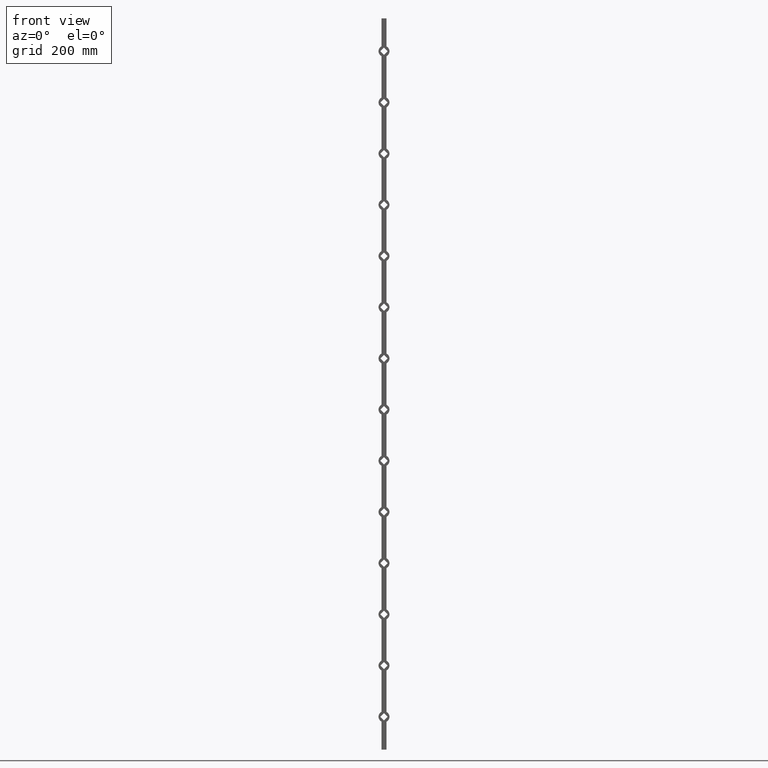
[diagram: clean part render]
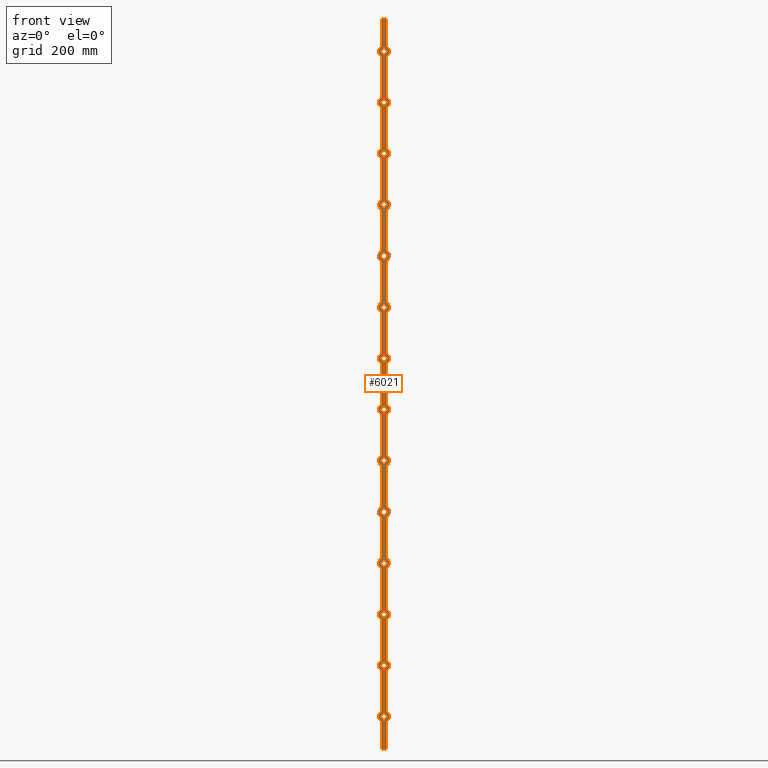
[diagram: same view with one face highlighted and labeled with its STEP entity id]
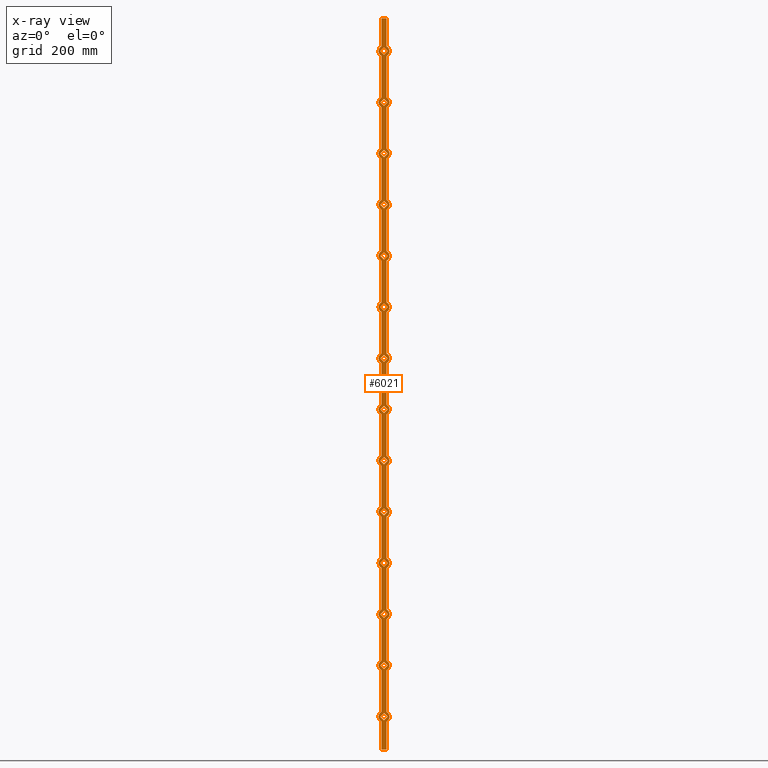
[diagram: x-ray of the same camera — body ghosted, the highlighted face saturated]
A machine part, front view. The second image highlights one B-rep face of the part: STEP entity #6021.
The next image is the same camera in x-ray: the body ghosted, the highlighted face saturated — about 0% of this face is hidden behind the body in this view.
In plain terms, the highlighted planar face has unit normal (0, 1, 0).
Its self-contained STEP definition (entity closure, byte-faithful):
#2 = VERTEX_POINT ( 'NONE', #5853 ) ;
#30 = DIRECTION ( 'NONE',  ( -0.7071067811865503483, -6.195440985631484900E-17, 0.7071067811865445751 ) ) ;
#32 = ORIENTED_EDGE ( 'NONE', *, *, #4397, .T. ) ;
#82 = VERTEX_POINT ( 'NONE', #5753 ) ;
#83 = VECTOR ( 'NONE', #3229, 1000.000000000000114 ) ;
#105 = CARTESIAN_POINT ( 'NONE',  ( 9.899494936611644036, -6.999999999999999112, 910.0000000000000000 ) ) ;
#108 = DIRECTION ( 'NONE',  ( 0.7071067811865503483, 6.195440985631484900E-17, 0.7071067811865445751 ) ) ;
#118 = DIRECTION ( 'NONE',  ( 0.000000000000000000, 0.000000000000000000, 1.000000000000000000 ) ) ;
#141 = LINE ( 'NONE', #10568, #1901 ) ;
#145 = VERTEX_POINT ( 'NONE', #12506 ) ;
#157 = CARTESIAN_POINT ( 'NONE',  ( -7.000000000000000000, -6.999999999999998224, -643.2664991614216206 ) ) ;
#165 = LINE ( 'NONE', #5179, #2810 ) ;
#170 = CARTESIAN_POINT ( 'NONE',  ( -7.000000000000015987, -7.000000000000000000, -476.7335008385784931 ) ) ;
#173 = EDGE_CURVE ( 'NONE', #5657, #12822, #8201, .T. ) ;
#200 = VERTEX_POINT ( 'NONE', #3824 ) ;
#207 = VERTEX_POINT ( 'NONE', #12878 ) ;
#218 = LINE ( 'NONE', #11062, #14425 ) ;
#223 = CARTESIAN_POINT ( 'NONE',  ( 9.899494936611676010, -7.000000000000005329, -70.00000000000005684 ) ) ;
#227 = DIRECTION ( 'NONE',  ( -0.000000000000000000, -0.000000000000000000, -1.000000000000000000 ) ) ;
#233 = FACE_BOUND ( 'NONE', #12228, .T. ) ;
#242 = CIRCLE ( 'NONE', #7488, 15.00000000000001421 ) ;
#253 = DIRECTION ( 'NONE',  ( 0.7071067811865503483, 6.195440985631484900E-17, 0.7071067811865445751 ) ) ;
#255 = CIRCLE ( 'NONE', #9427, 15.00000000000001421 ) ;
#260 = EDGE_CURVE ( 'NONE', #10491, #7687, #12720, .T. ) ;
#297 = DIRECTION ( 'NONE',  ( 0.000000000000000000, 1.000000000000000000, 0.000000000000000000 ) ) ;
#302 = VERTEX_POINT ( 'NONE', #9654 ) ;
#315 = CARTESIAN_POINT ( 'NONE',  ( 7.000000000000000000, -6.999999999999998224, 643.2664991614216206 ) ) ;
#326 = ORIENTED_EDGE ( 'NONE', *, *, #12542, .F. ) ;
#328 = CARTESIAN_POINT ( 'NONE',  ( 7.000000000000000000, -6.999999999999999112, 1000.000000000000000 ) ) ;
#337 = VERTEX_POINT ( 'NONE', #6248 ) ;
#361 = ORIENTED_EDGE ( 'NONE', *, *, #11592, .T. ) ;
#422 = VECTOR ( 'NONE', #6340, 1000.000000000000000 ) ;
#449 = VECTOR ( 'NONE', #5914, 1000.000000000000000 ) ;
#452 = EDGE_CURVE ( 'NONE', #6860, #4199, #8543, .T. ) ;
#457 = VECTOR ( 'NONE', #11904, 1000.000000000000000 ) ;
#469 = EDGE_CURVE ( 'NONE', #1159, #4199, #5909, .T. ) ;
#486 = CARTESIAN_POINT ( 'NONE',  ( -2.046678508484522304E-14, -7.000000000000006217, 499.8994949366115748 ) ) ;
#488 = VECTOR ( 'NONE', #10713, 1000.000000000000000 ) ;
#496 = DIRECTION ( 'NONE',  ( 0.000000000000000000, 1.000000000000000000, 0.000000000000000000 ) ) ;
#535 = AXIS2_PLACEMENT_3D ( 'NONE', #3112, #8903, #11126 ) ;
#564 = VERTEX_POINT ( 'NONE', #1296 ) ;
#573 = DIRECTION ( 'NONE',  ( 0.7071067811865503483, 6.195440985631484900E-17, 0.7071067811865445751 ) ) ;
#580 = EDGE_CURVE ( 'NONE', #6409, #13265, #12886, .T. ) ;
#581 = VERTEX_POINT ( 'NONE', #5867 ) ;
#584 = CARTESIAN_POINT ( 'NONE',  ( 7.000000000000000000, -6.999999999999999112, 1000.000000000000000 ) ) ;
#595 = CARTESIAN_POINT ( 'NONE',  ( 7.000000000000000000, -6.999999999999999112, 1000.000000000000000 ) ) ;
#597 = CARTESIAN_POINT ( 'NONE',  ( -9.899494936611672458, -7.000000000000007105, -910.0000000000002274 ) ) ;
#598 = LINE ( 'NONE', #7219, #14291 ) ;
#607 = VECTOR ( 'NONE', #11927, 1000.000000000000000 ) ;
#611 = VECTOR ( 'NONE', #12465, 1000.000000000000000 ) ;
#629 = DIRECTION ( 'NONE',  ( -0.000000000000000000, -0.000000000000000000, -1.000000000000000000 ) ) ;
#651 = LINE ( 'NONE', #13893, #4363 ) ;
#680 = LINE ( 'NONE', #2122, #1747 ) ;
#695 = ORIENTED_EDGE ( 'NONE', *, *, #12869, .T. ) ;
#728 = ORIENTED_EDGE ( 'NONE', *, *, #14191, .F. ) ;
#730 = DIRECTION ( 'NONE',  ( 0.000000000000000000, 1.000000000000000000, 0.000000000000000000 ) ) ;
#742 = DIRECTION ( 'NONE',  ( -0.000000000000000000, -0.000000000000000000, -1.000000000000000000 ) ) ;
#745 = CARTESIAN_POINT ( 'NONE',  ( -2.046678508484522304E-14, -7.000000000000006217, 219.8994949366115463 ) ) ;
#758 = CARTESIAN_POINT ( 'NONE',  ( 0.000000000000000000, -7.000000000000000000, -770.0000000000001137 ) ) ;
#760 = FACE_BOUND ( 'NONE', #7948, .T. ) ;
#761 = VERTEX_POINT ( 'NONE', #9620 ) ;
#780 = DIRECTION ( 'NONE',  ( 0.000000000000000000, 0.000000000000000000, 1.000000000000000000 ) ) ;
#843 = ORIENTED_EDGE ( 'NONE', *, *, #4593, .F. ) ;
#849 = DIRECTION ( 'NONE',  ( 0.000000000000000000, 1.000000000000000000, 0.000000000000000000 ) ) ;
#876 = EDGE_CURVE ( 'NONE', #9740, #8835, #12383, .T. ) ;
#940 = CARTESIAN_POINT ( 'NONE',  ( 0.000000000000000000, -7.000000000000000000, 69.99999999999995737 ) ) ;
#949 = VECTOR ( 'NONE', #14311, 1000.000000000000000 ) ;
#963 = CARTESIAN_POINT ( 'NONE',  ( -9.899494936611672458, -7.000000000000007105, 69.99999999999995737 ) ) ;
#987 = DIRECTION ( 'NONE',  ( 0.000000000000000000, 1.000000000000000000, 0.000000000000000000 ) ) ;
#992 = VERTEX_POINT ( 'NONE', #3752 ) ;
#995 = VECTOR ( 'NONE', #14071, 1000.000000000000114 ) ;
#998 = VERTEX_POINT ( 'NONE', #13937 ) ;
#1024 = ORIENTED_EDGE ( 'NONE', *, *, #5434, .F. ) ;
#1108 = VERTEX_POINT ( 'NONE', #7322 ) ;
#1119 = CARTESIAN_POINT ( 'NONE',  ( 7.000000000000000000, -6.999999999999999112, 1000.000000000000000 ) ) ;
#1127 = EDGE_CURVE ( 'NONE', #13265, #3186, #8354, .T. ) ;
#1159 = VERTEX_POINT ( 'NONE', #14333 ) ;
#1174 = EDGE_CURVE ( 'NONE', #5830, #564, #4665, .T. ) ;
#1185 = DIRECTION ( 'NONE',  ( 0.000000000000000000, 1.000000000000000000, 0.000000000000000000 ) ) ;
#1201 = EDGE_CURVE ( 'NONE', #4258, #6124, #12023, .T. ) ;
#1202 = CARTESIAN_POINT ( 'NONE',  ( 0.000000000000000000, -7.000000000000000000, -630.0000000000000000 ) ) ;
#1206 = CARTESIAN_POINT ( 'NONE',  ( -2.046678508484522304E-14, -7.000000000000006217, 779.8994949366116316 ) ) ;
#1210 = CARTESIAN_POINT ( 'NONE',  ( -9.899494936611672458, -7.000000000000003553, 910.0000000000000000 ) ) ;
#1268 = DIRECTION ( 'NONE',  ( 0.7071067811865503483, 6.195440985631484900E-17, 0.7071067811865445751 ) ) ;
#1274 = VECTOR ( 'NONE', #1623, 1000.000000000000000 ) ;
#1293 = EDGE_CURVE ( 'NONE', #8082, #3311, #10948, .T. ) ;
#1296 = CARTESIAN_POINT ( 'NONE',  ( 6.999999999999974243, -7.000000000000000000, 896.7335008385783794 ) ) ;
#1327 = CARTESIAN_POINT ( 'NONE',  ( -7.000000000000000000, -6.999999999999999112, -1000.000000000000000 ) ) ;
#1349 = AXIS2_PLACEMENT_3D ( 'NONE', #758, #13013, #5095 ) ;
#1367 = VERTEX_POINT ( 'NONE', #3728 ) ;
#1376 = CARTESIAN_POINT ( 'NONE',  ( -2.046678508484522304E-14, -7.000000000000006217, -900.1005050633887095 ) ) ;
#1394 = EDGE_CURVE ( 'NONE', #10491, #14353, #6798, .T. ) ;
#1404 = VERTEX_POINT ( 'NONE', #2426 ) ;
#1457 = VECTOR ( 'NONE', #12927, 1000.000000000000114 ) ;
#1461 = AXIS2_PLACEMENT_3D ( 'NONE', #7454, #10723, #14213 ) ;
#1480 = EDGE_CURVE ( 'NONE', #5011, #4667, #10931, .T. ) ;
#1484 = LINE ( 'NONE', #12272, #2193 ) ;
#1540 = ORIENTED_EDGE ( 'NONE', *, *, #6805, .T. ) ;
#1559 = CARTESIAN_POINT ( 'NONE',  ( 9.899494936611684892, -6.999999999999999112, -210.0000000000000853 ) ) ;
#1569 = DIRECTION ( 'NONE',  ( 0.000000000000000000, 0.000000000000000000, 1.000000000000000000 ) ) ;
#1587 = ORIENTED_EDGE ( 'NONE', *, *, #7826, .T. ) ;
#1591 = LINE ( 'NONE', #1119, #2298 ) ;
#1593 = DIRECTION ( 'NONE',  ( -0.7071067811865517916, -6.195440985631473806E-17, -0.7071067811865432429 ) ) ;
#1596 = ORIENTED_EDGE ( 'NONE', *, *, #876, .F. ) ;
#1623 = DIRECTION ( 'NONE',  ( -0.7071067811865517916, -6.195440985631473806E-17, -0.7071067811865432429 ) ) ;
#1634 = VERTEX_POINT ( 'NONE', #12253 ) ;
#1655 = VERTEX_POINT ( 'NONE', #6743 ) ;
#1664 = VECTOR ( 'NONE', #11960, 1000.000000000000000 ) ;
#1670 = CARTESIAN_POINT ( 'NONE',  ( 7.000000000000000000, -6.999999999999999112, 1000.000000000000000 ) ) ;
#1678 = CARTESIAN_POINT ( 'NONE',  ( -9.899494936611672458, -7.000000000000007105, 630.0000000000000000 ) ) ;
#1684 = EDGE_CURVE ( 'NONE', #2271, #8835, #11482, .T. ) ;
#1732 = CARTESIAN_POINT ( 'NONE',  ( 0.000000000000000000, -7.000000000000000000, -350.0000000000002274 ) ) ;
#1739 = ORIENTED_EDGE ( 'NONE', *, *, #11700, .T. ) ;
#1745 = VERTEX_POINT ( 'NONE', #14497 ) ;
#1747 = VECTOR ( 'NONE', #1983, 1000.000000000000000 ) ;
#1771 = CARTESIAN_POINT ( 'NONE',  ( 9.899494936611676010, -7.000000000000005329, 490.0000000000000000 ) ) ;
#1788 = EDGE_CURVE ( 'NONE', #9740, #1745, #8693, .T. ) ;
#1803 = CARTESIAN_POINT ( 'NONE',  ( 7.000000000000000000, -6.999999999999999112, 1000.000000000000000 ) ) ;
#1812 = EDGE_CURVE ( 'NONE', #1404, #6810, #255, .T. ) ;
#1827 = LINE ( 'NONE', #2422, #13374 ) ;
#1839 = VECTOR ( 'NONE', #12831, 1000.000000000000000 ) ;
#1848 = CARTESIAN_POINT ( 'NONE',  ( -2.046678508484522304E-14, -7.000000000000006217, -760.1005050633885958 ) ) ;
#1855 = EDGE_CURVE ( 'NONE', #1634, #11370, #7490, .T. ) ;
#1867 = ORIENTED_EDGE ( 'NONE', *, *, #1788, .T. ) ;
#1869 = VERTEX_POINT ( 'NONE', #12273 ) ;
#1895 = CARTESIAN_POINT ( 'NONE',  ( -7.000000000000000000, -6.999999999999999112, 1000.000000000000000 ) ) ;
#1901 = VECTOR ( 'NONE', #7297, 1000.000000000000114 ) ;
#1903 = ORIENTED_EDGE ( 'NONE', *, *, #10673, .T. ) ;
#1908 = DIRECTION ( 'NONE',  ( -0.000000000000000000, -0.000000000000000000, -1.000000000000000000 ) ) ;
#1910 = LINE ( 'NONE', #13085, #13826 ) ;
#1927 = DIRECTION ( 'NONE',  ( -0.000000000000000000, -0.000000000000000000, -1.000000000000000000 ) ) ;
#1983 = DIRECTION ( 'NONE',  ( -0.000000000000000000, -0.000000000000000000, -1.000000000000000000 ) ) ;
#1994 = CARTESIAN_POINT ( 'NONE',  ( 7.000000000000000000, -6.999999999999999112, 1000.000000000000000 ) ) ;
#1997 = CIRCLE ( 'NONE', #7326, 15.00000000000001421 ) ;
#1998 = CARTESIAN_POINT ( 'NONE',  ( 7.000000000000000000, -6.999999999999999112, 1000.000000000000000 ) ) ;
#2013 = CARTESIAN_POINT ( 'NONE',  ( -7.000000000000000000, -6.999999999999998224, -923.2664991614218479 ) ) ;
#2070 = CARTESIAN_POINT ( 'NONE',  ( 9.899494936611676010, -7.000000000000005329, 630.0000000000000000 ) ) ;
#2108 = EDGE_CURVE ( 'NONE', #5662, #11074, #3737, .T. ) ;
#2110 = VERTEX_POINT ( 'NONE', #11151 ) ;
#2122 = CARTESIAN_POINT ( 'NONE',  ( 7.000000000000000000, -6.999999999999999112, 1000.000000000000000 ) ) ;
#2124 = DIRECTION ( 'NONE',  ( -0.7071067811865517916, -6.195440985631473806E-17, -0.7071067811865432429 ) ) ;
#2132 = VERTEX_POINT ( 'NONE', #2486 ) ;
#2160 = VECTOR ( 'NONE', #8357, 1000.000000000000114 ) ;
#2163 = VECTOR ( 'NONE', #3964, 1000.000000000000000 ) ;
#2170 = EDGE_CURVE ( 'NONE', #14050, #9272, #5866, .T. ) ;
#2177 = CARTESIAN_POINT ( 'NONE',  ( -2.046678508484522304E-14, -7.000000000000006217, -620.1005050633884821 ) ) ;
#2182 = ORIENTED_EDGE ( 'NONE', *, *, #12578, .T. ) ;
#2193 = VECTOR ( 'NONE', #5167, 1000.000000000000000 ) ;
#2227 = DIRECTION ( 'NONE',  ( 1.000000000000000000, 0.000000000000000000, 0.000000000000000000 ) ) ;
#2250 = CARTESIAN_POINT ( 'NONE',  ( 7.000000000000000000, -6.999999999999998224, -476.7335008385784931 ) ) ;
#2254 = ORIENTED_EDGE ( 'NONE', *, *, #6785, .T. ) ;
#2270 = VERTEX_POINT ( 'NONE', #7508 ) ;
#2271 = VERTEX_POINT ( 'NONE', #6317 ) ;
#2272 = DIRECTION ( 'NONE',  ( -0.000000000000000000, -0.000000000000000000, -1.000000000000000000 ) ) ;
#2276 = CARTESIAN_POINT ( 'NONE',  ( -7.000000000000000000, -6.999999999999999112, 1000.000000000000000 ) ) ;
#2298 = VECTOR ( 'NONE', #13465, 1000.000000000000000 ) ;
#2301 = DIRECTION ( 'NONE',  ( -0.000000000000000000, -0.000000000000000000, -1.000000000000000000 ) ) ;
#2321 = DIRECTION ( 'NONE',  ( -0.000000000000000000, -0.000000000000000000, -1.000000000000000000 ) ) ;
#2329 = ORIENTED_EDGE ( 'NONE', *, *, #6115, .T. ) ;
#2338 = DIRECTION ( 'NONE',  ( 0.7071067811865517916, 6.195440985631473806E-17, -0.7071067811865432429 ) ) ;
#2348 = ORIENTED_EDGE ( 'NONE', *, *, #11530, .F. ) ;
#2373 = EDGE_CURVE ( 'NONE', #5654, #13651, #3048, .T. ) ;
#2413 = CARTESIAN_POINT ( 'NONE',  ( -6.999999999999974243, -7.000000000000000000, 503.2664991614216206 ) ) ;
#2421 = EDGE_CURVE ( 'NONE', #3071, #13651, #2526, .T. ) ;
#2422 = CARTESIAN_POINT ( 'NONE',  ( -7.000000000000000000, -6.999999999999999112, 1000.000000000000000 ) ) ;
#2424 = VERTEX_POINT ( 'NONE', #13294 ) ;
#2426 = CARTESIAN_POINT ( 'NONE',  ( 7.000000000000000000, -6.999999999999998224, -616.7335008385783794 ) ) ;
#2427 = VERTEX_POINT ( 'NONE', #6530 ) ;
#2456 = CARTESIAN_POINT ( 'NONE',  ( -2.046678508484522304E-14, -7.000000000000006217, 760.1005050633884821 ) ) ;
#2458 = CIRCLE ( 'NONE', #10877, 15.00000000000000711 ) ;
#2470 = LINE ( 'NONE', #5032, #14030 ) ;
#2474 = ORIENTED_EDGE ( 'NONE', *, *, #6758, .F. ) ;
#2486 = CARTESIAN_POINT ( 'NONE',  ( -2.046678508484522304E-14, -7.000000000000006217, -359.8994949366118021 ) ) ;
#2495 = LINE ( 'NONE', #745, #10198 ) ;
#2522 = CIRCLE ( 'NONE', #8091, 15.00000000000001421 ) ;
#2526 = LINE ( 'NONE', #2939, #2163 ) ;
#2560 = DIRECTION ( 'NONE',  ( 0.7071067811865517916, 6.195440985631473806E-17, -0.7071067811865432429 ) ) ;
#2585 = DIRECTION ( 'NONE',  ( -0.7071067811865503483, -6.195440985631484900E-17, 0.7071067811865445751 ) ) ;
#2633 = AXIS2_PLACEMENT_3D ( 'NONE', #8466, #7358, #2867 ) ;
#2639 = CARTESIAN_POINT ( 'NONE',  ( 9.899494936611796803, -6.999999999999999112, -70.00000000000005684 ) ) ;
#2688 = DIRECTION ( 'NONE',  ( 0.7071067811865503483, 6.195440985631484900E-17, 0.7071067811865445751 ) ) ;
#2695 = CARTESIAN_POINT ( 'NONE',  ( -2.046678508484522304E-14, -7.000000000000006217, -219.8994949366116600 ) ) ;
#2712 = ORIENTED_EDGE ( 'NONE', *, *, #12454, .F. ) ;
#2718 = VECTOR ( 'NONE', #9826, 1000.000000000000000 ) ;
#2728 = CARTESIAN_POINT ( 'NONE',  ( 6.999999999999994671, -7.000000000000000000, -83.26649916142167740 ) ) ;
#2759 = DIRECTION ( 'NONE',  ( 0.7071067811865517916, 6.195440985631473806E-17, -0.7071067811865432429 ) ) ;
#2787 = ORIENTED_EDGE ( 'NONE', *, *, #3932, .T. ) ;
#2794 = VERTEX_POINT ( 'NONE', #11746 ) ;
#2807 = CARTESIAN_POINT ( 'NONE',  ( -7.000000000000000000, -6.999999999999999112, 1000.000000000000000 ) ) ;
#2810 = VECTOR ( 'NONE', #5132, 1000.000000000000000 ) ;
#2820 = ORIENTED_EDGE ( 'NONE', *, *, #1812, .F. ) ;
#2825 = VERTEX_POINT ( 'NONE', #7330 ) ;
#2828 = AXIS2_PLACEMENT_3D ( 'NONE', #2901, #13959, #1569 ) ;
#2834 = VECTOR ( 'NONE', #253, 1000.000000000000114 ) ;
#2839 = EDGE_LOOP ( 'NONE', ( #12463, #6728, #9958, #7231 ) ) ;
#2846 = EDGE_CURVE ( 'NONE', #3186, #82, #11156, .T. ) ;
#2851 = VERTEX_POINT ( 'NONE', #10649 ) ;
#2855 = ORIENTED_EDGE ( 'NONE', *, *, #6295, .F. ) ;
#2860 = CARTESIAN_POINT ( 'NONE',  ( -2.046678508484522304E-14, -7.000000000000006217, -919.8994949366118590 ) ) ;
#2867 = DIRECTION ( 'NONE',  ( 0.000000000000000000, 0.000000000000000000, 1.000000000000000000 ) ) ;
#2875 = FACE_BOUND ( 'NONE', #4969, .T. ) ;
#2886 = CARTESIAN_POINT ( 'NONE',  ( -9.899494936611672458, -7.000000000000007105, 770.0000000000000000 ) ) ;
#2901 = CARTESIAN_POINT ( 'NONE',  ( 0.000000000000000000, -7.000000000000000000, -910.0000000000002274 ) ) ;
#2906 = LINE ( 'NONE', #5847, #14471 ) ;
#2927 = CARTESIAN_POINT ( 'NONE',  ( -2.046678508484522304E-14, -7.000000000000006217, 760.1005050633884821 ) ) ;
#2930 = VERTEX_POINT ( 'NONE', #14334 ) ;
#2939 = CARTESIAN_POINT ( 'NONE',  ( -7.000000000000000000, -6.999999999999999112, 1000.000000000000000 ) ) ;
#2961 = ORIENTED_EDGE ( 'NONE', *, *, #3289, .T. ) ;
#2964 = LINE ( 'NONE', #10425, #4881 ) ;
#2985 = CARTESIAN_POINT ( 'NONE',  ( -2.046678508484522304E-14, -7.000000000000006217, 639.8994949366116316 ) ) ;
#2999 = CARTESIAN_POINT ( 'NONE',  ( 6.999999999999974243, -7.000000000000000000, -643.2664991614216206 ) ) ;
#3011 = ORIENTED_EDGE ( 'NONE', *, *, #13843, .F. ) ;
#3029 = VECTOR ( 'NONE', #6685, 1000.000000000000000 ) ;
#3044 = CARTESIAN_POINT ( 'NONE',  ( -2.046678508484522304E-14, -7.000000000000006217, 340.1005050633884252 ) ) ;
#3048 = CIRCLE ( 'NONE', #1349, 15.00000000000001421 ) ;
#3071 = VERTEX_POINT ( 'NONE', #157 ) ;
#3074 = VECTOR ( 'NONE', #10976, 1000.000000000000114 ) ;
#3112 = CARTESIAN_POINT ( 'NONE',  ( 0.000000000000000000, -7.000000000000000000, -770.0000000000001137 ) ) ;
#3114 = ORIENTED_EDGE ( 'NONE', *, *, #13622, .T. ) ;
#3116 = CARTESIAN_POINT ( 'NONE',  ( -9.899494936611672458, -7.000000000000007105, 490.0000000000000000 ) ) ;
#3124 = ORIENTED_EDGE ( 'NONE', *, *, #2108, .F. ) ;
#3158 = AXIS2_PLACEMENT_3D ( 'NONE', #8305, #13808, #8161 ) ;
#3186 = VERTEX_POINT ( 'NONE', #2456 ) ;
#3187 = VERTEX_POINT ( 'NONE', #1559 ) ;
#3220 = DIRECTION ( 'NONE',  ( 0.000000000000000000, -0.000000000000000000, 1.000000000000000000 ) ) ;
#3225 = FACE_BOUND ( 'NONE', #2839, .T. ) ;
#3229 = DIRECTION ( 'NONE',  ( -0.7071067811865503483, -6.195440985631484900E-17, 0.7071067811865445751 ) ) ;
#3235 = LINE ( 'NONE', #13088, #11108 ) ;
#3237 = LINE ( 'NONE', #1998, #949 ) ;
#3254 = DIRECTION ( 'NONE',  ( 0.000000000000000000, 0.000000000000000000, 1.000000000000000000 ) ) ;
#3264 = EDGE_CURVE ( 'NONE', #4586, #998, #10278, .T. ) ;
#3283 = CARTESIAN_POINT ( 'NONE',  ( 7.000000000000000000, -6.999999999999999112, 1000.000000000000000 ) ) ;
#3289 = EDGE_CURVE ( 'NONE', #12156, #3895, #8371, .T. ) ;
#3292 = CARTESIAN_POINT ( 'NONE',  ( -9.899494936611672458, -7.000000000000007105, -490.0000000000001137 ) ) ;
#3306 = CARTESIAN_POINT ( 'NONE',  ( 7.000000000000000000, -6.999999999999999112, 1000.000000000000000 ) ) ;
#3311 = VERTEX_POINT ( 'NONE', #2985 ) ;
#3312 = DIRECTION ( 'NONE',  ( -0.7071067811865503483, -6.195440985631484900E-17, 0.7071067811865445751 ) ) ;
#3334 = ORIENTED_EDGE ( 'NONE', *, *, #1127, .T. ) ;
#3335 = CARTESIAN_POINT ( 'NONE',  ( 0.000000000000000000, -7.000000000000000000, -210.0000000000000853 ) ) ;
#3343 = ORIENTED_EDGE ( 'NONE', *, *, #6400, .F. ) ;
#3348 = ORIENTED_EDGE ( 'NONE', *, *, #2421, .T. ) ;
#3356 = CIRCLE ( 'NONE', #6791, 15.00000000000001421 ) ;
#3368 = DIRECTION ( 'NONE',  ( -0.7071067811865503483, -6.195440985631484900E-17, 0.7071067811865445751 ) ) ;
#3372 = EDGE_CURVE ( 'NONE', #7842, #6562, #9412, .T. ) ;
#3437 = ORIENTED_EDGE ( 'NONE', *, *, #9733, .T. ) ;
#3570 = EDGE_CURVE ( 'NONE', #12477, #7054, #14481, .T. ) ;
#3590 = EDGE_CURVE ( 'NONE', #7615, #8296, #8014, .T. ) ;
#3650 = CARTESIAN_POINT ( 'NONE',  ( 0.000000000000000000, -7.000000000000000000, -490.0000000000001137 ) ) ;
#3688 = ORIENTED_EDGE ( 'NONE', *, *, #9392, .T. ) ;
#3717 = VECTOR ( 'NONE', #1908, 1000.000000000000000 ) ;
#3728 = CARTESIAN_POINT ( 'NONE',  ( -2.046678508484522304E-14, -7.000000000000006217, 200.1005050633883968 ) ) ;
#3733 = CIRCLE ( 'NONE', #535, 15.00000000000001421 ) ;
#3737 = CIRCLE ( 'NONE', #13359, 15.00000000000001421 ) ;
#3752 = CARTESIAN_POINT ( 'NONE',  ( 9.899494936611629825, -6.999999999999999112, 210.0000000000000284 ) ) ;
#3754 = FACE_BOUND ( 'NONE', #8323, .T. ) ;
#3771 = LINE ( 'NONE', #3292, #13055 ) ;
#3781 = VECTOR ( 'NONE', #7787, 1000.000000000000114 ) ;
#3823 = CARTESIAN_POINT ( 'NONE',  ( -2.046678508484522304E-14, -7.000000000000006217, -60.10050506338848919 ) ) ;
#3824 = CARTESIAN_POINT ( 'NONE',  ( 7.000000000000000000, -6.999999999999998224, 83.26649916142156371 ) ) ;
#3841 = VERTEX_POINT ( 'NONE', #8613 ) ;
#3895 = VERTEX_POINT ( 'NONE', #10000 ) ;
#3903 = VECTOR ( 'NONE', #7072, 1000.000000000000114 ) ;
#3921 = FACE_BOUND ( 'NONE', #9284, .T. ) ;
#3932 = EDGE_CURVE ( 'NONE', #12822, #7615, #6800, .T. ) ;
#3952 = VECTOR ( 'NONE', #12332, 1000.000000000000000 ) ;
#3955 = EDGE_CURVE ( 'NONE', #7054, #4586, #1484, .T. ) ;
#3961 = DIRECTION ( 'NONE',  ( -0.7071067811865503483, -6.195440985631484900E-17, 0.7071067811865445751 ) ) ;
#3963 = ORIENTED_EDGE ( 'NONE', *, *, #6686, .T. ) ;
#3964 = DIRECTION ( 'NONE',  ( -0.000000000000000000, -0.000000000000000000, -1.000000000000000000 ) ) ;
#3972 = DIRECTION ( 'NONE',  ( 0.000000000000000000, 1.000000000000000000, 0.000000000000000000 ) ) ;
#3992 = VECTOR ( 'NONE', #7603, 1000.000000000000000 ) ;
#4006 = LINE ( 'NONE', #584, #488 ) ;
#4020 = EDGE_CURVE ( 'NONE', #5777, #14050, #10261, .T. ) ;
#4093 = CIRCLE ( 'NONE', #6101, 15.00000000000001421 ) ;
#4102 = DIRECTION ( 'NONE',  ( 0.000000000000000000, 0.000000000000000000, 1.000000000000000000 ) ) ;
#4121 = DIRECTION ( 'NONE',  ( 0.7071067811865503483, 6.195440985631484900E-17, 0.7071067811865445751 ) ) ;
#4122 = ORIENTED_EDGE ( 'NONE', *, *, #8111, .F. ) ;
#4127 = CARTESIAN_POINT ( 'NONE',  ( 0.000000000000000000, -7.000000000000000000, 910.0000000000000000 ) ) ;
#4163 = CARTESIAN_POINT ( 'NONE',  ( 7.000000000000000000, -6.999999999999998224, 223.2664991614215637 ) ) ;
#4189 = CARTESIAN_POINT ( 'NONE',  ( -6.999999999999994671, -7.000000000000000000, -196.7335008385784647 ) ) ;
#4196 = EDGE_CURVE ( 'NONE', #8798, #2110, #8521, .T. ) ;
#4199 = VERTEX_POINT ( 'NONE', #170 ) ;
#4227 = CARTESIAN_POINT ( 'NONE',  ( 0.000000000000000000, -7.000000000000000000, 490.0000000000000000 ) ) ;
#4238 = EDGE_CURVE ( 'NONE', #4901, #7065, #9899, .T. ) ;
#4244 = CARTESIAN_POINT ( 'NONE',  ( -9.899494936611672458, -7.000000000000007105, 350.0000000000000000 ) ) ;
#4257 = ORIENTED_EDGE ( 'NONE', *, *, #580, .T. ) ;
#4258 = VERTEX_POINT ( 'NONE', #5920 ) ;
#4261 = ORIENTED_EDGE ( 'NONE', *, *, #1394, .F. ) ;
#4269 = LINE ( 'NONE', #6190, #1274 ) ;
#4272 = ORIENTED_EDGE ( 'NONE', *, *, #12636, .T. ) ;
#4278 = LINE ( 'NONE', #1771, #9188 ) ;
#4281 = CARTESIAN_POINT ( 'NONE',  ( -2.046678508484522304E-14, -7.000000000000006217, -480.1005050633885389 ) ) ;
#4297 = LINE ( 'NONE', #10170, #12866 ) ;
#4319 = VERTEX_POINT ( 'NONE', #9478 ) ;
#4325 = CARTESIAN_POINT ( 'NONE',  ( -7.000000000000000000, -6.999999999999998224, -363.2664991614217911 ) ) ;
#4339 = DIRECTION ( 'NONE',  ( 0.7071067811865517916, 6.195440985631473806E-17, -0.7071067811865432429 ) ) ;
#4348 = CARTESIAN_POINT ( 'NONE',  ( 7.000000000000015987, -7.000000000000000000, 476.7335008385783794 ) ) ;
#4363 = VECTOR ( 'NONE', #2585, 1000.000000000000114 ) ;
#4387 = CIRCLE ( 'NONE', #8938, 15.00000000000001421 ) ;
#4397 = EDGE_CURVE ( 'NONE', #13026, #4901, #4656, .T. ) ;
#4399 = EDGE_CURVE ( 'NONE', #10340, #2132, #598, .T. ) ;
#4431 = ORIENTED_EDGE ( 'NONE', *, *, #4238, .T. ) ;
#4432 = DIRECTION ( 'NONE',  ( 0.000000000000000000, 1.000000000000000000, 0.000000000000000000 ) ) ;
#4436 = CARTESIAN_POINT ( 'NONE',  ( -2.046678508484522304E-14, -7.000000000000006217, 480.1005050633884252 ) ) ;
#4440 = DIRECTION ( 'NONE',  ( 0.7071067811865517916, 6.195440985631473806E-17, -0.7071067811865432429 ) ) ;
#4441 = EDGE_CURVE ( 'NONE', #8314, #9043, #7816, .T. ) ;
#4445 = VECTOR ( 'NONE', #2301, 1000.000000000000000 ) ;
#4482 = LINE ( 'NONE', #1994, #2718 ) ;
#4503 = CARTESIAN_POINT ( 'NONE',  ( -9.899494936611672458, -7.000000000000007105, 490.0000000000000000 ) ) ;
#4539 = CARTESIAN_POINT ( 'NONE',  ( -7.000000000000000000, -6.999999999999999112, 1000.000000000000000 ) ) ;
#4586 = VERTEX_POINT ( 'NONE', #7670 ) ;
#4593 = EDGE_CURVE ( 'NONE', #5484, #5662, #3237, .T. ) ;
#4641 = CARTESIAN_POINT ( 'NONE',  ( 9.899494936611676010, -7.000000000000005329, 69.99999999999995737 ) ) ;
#4656 = LINE ( 'NONE', #10490, #10246 ) ;
#4665 = CIRCLE ( 'NONE', #9063, 15.00000000000001421 ) ;
#4667 = VERTEX_POINT ( 'NONE', #7860 ) ;
#4681 = CARTESIAN_POINT ( 'NONE',  ( 7.000000000000000000, -7.000000000000000000, 56.73350083857834392 ) ) ;
#4722 = CARTESIAN_POINT ( 'NONE',  ( -2.046678508484522304E-14, -7.000000000000006217, 79.89949493661153213 ) ) ;
#4725 = ORIENTED_EDGE ( 'NONE', *, *, #2373, .F. ) ;
#4756 = ORIENTED_EDGE ( 'NONE', *, *, #6451, .T. ) ;
#4759 = ORIENTED_EDGE ( 'NONE', *, *, #8916, .T. ) ;
#4772 = VERTEX_POINT ( 'NONE', #3306 ) ;
#4777 = CARTESIAN_POINT ( 'NONE',  ( 7.000000000000000000, -6.999999999999998224, -336.7335008385786068 ) ) ;
#4809 = LINE ( 'NONE', #1670, #5346 ) ;
#4811 = EDGE_CURVE ( 'NONE', #9471, #4772, #6593, .T. ) ;
#4841 = VECTOR ( 'NONE', #5433, 1000.000000000000000 ) ;
#4843 = ORIENTED_EDGE ( 'NONE', *, *, #4875, .F. ) ;
#4866 = VERTEX_POINT ( 'NONE', #12547 ) ;
#4875 = EDGE_CURVE ( 'NONE', #9723, #11942, #5531, .T. ) ;
#4880 = DIRECTION ( 'NONE',  ( 0.7071067811865517916, 6.195440985631473806E-17, -0.7071067811865432429 ) ) ;
#4881 = VECTOR ( 'NONE', #2560, 1000.000000000000000 ) ;
#4901 = VERTEX_POINT ( 'NONE', #1327 ) ;
#4950 = ORIENTED_EDGE ( 'NONE', *, *, #9084, .F. ) ;
#4955 = ORIENTED_EDGE ( 'NONE', *, *, #1684, .T. ) ;
#4962 = VECTOR ( 'NONE', #10532, 1000.000000000000000 ) ;
#4969 = EDGE_LOOP ( 'NONE', ( #13666, #9344, #3688, #10368 ) ) ;
#4970 = CARTESIAN_POINT ( 'NONE',  ( -9.899494936611672458, -7.000000000000007105, -210.0000000000000853 ) ) ;
#5006 = VECTOR ( 'NONE', #9952, 1000.000000000000114 ) ;
#5011 = VERTEX_POINT ( 'NONE', #10822 ) ;
#5032 = CARTESIAN_POINT ( 'NONE',  ( 9.899494936611676010, -7.000000000000005329, -210.0000000000000853 ) ) ;
#5033 = CARTESIAN_POINT ( 'NONE',  ( 0.000000000000000000, -7.000000000000000000, -910.0000000000002274 ) ) ;
#5052 = VERTEX_POINT ( 'NONE', #4281 ) ;
#5056 = EDGE_CURVE ( 'NONE', #4319, #6113, #3771, .T. ) ;
#5079 = EDGE_CURVE ( 'NONE', #3841, #7687, #12018, .T. ) ;
#5088 = ORIENTED_EDGE ( 'NONE', *, *, #8482, .T. ) ;
#5095 = DIRECTION ( 'NONE',  ( 0.000000000000000000, 0.000000000000000000, 1.000000000000000000 ) ) ;
#5132 = DIRECTION ( 'NONE',  ( 0.7071067811865517916, 6.195440985631473806E-17, -0.7071067811865432429 ) ) ;
#5139 = EDGE_CURVE ( 'NONE', #4667, #8082, #8886, .T. ) ;
#5151 = VERTEX_POINT ( 'NONE', #11169 ) ;
#5155 = DIRECTION ( 'NONE',  ( 0.000000000000000000, 1.000000000000000000, 0.000000000000000000 ) ) ;
#5167 = DIRECTION ( 'NONE',  ( -0.7071067811865517916, -6.195440985631473806E-17, -0.7071067811865432429 ) ) ;
#5179 = CARTESIAN_POINT ( 'NONE',  ( 9.899494936611676010, -7.000000000000005329, -490.0000000000001137 ) ) ;
#5264 = EDGE_CURVE ( 'NONE', #12249, #14421, #2906, .T. ) ;
#5276 = VERTEX_POINT ( 'NONE', #2413 ) ;
#5283 = EDGE_CURVE ( 'NONE', #8623, #9790, #13755, .T. ) ;
#5293 = ORIENTED_EDGE ( 'NONE', *, *, #14501, .T. ) ;
#5300 = LINE ( 'NONE', #8594, #6023 ) ;
#5311 = LINE ( 'NONE', #4436, #13187 ) ;
#5316 = ORIENTED_EDGE ( 'NONE', *, *, #6666, .T. ) ;
#5317 = CARTESIAN_POINT ( 'NONE',  ( 7.000000000000000000, -6.999999999999999112, 1000.000000000000000 ) ) ;
#5346 = VECTOR ( 'NONE', #11706, 1000.000000000000000 ) ;
#5361 = DIRECTION ( 'NONE',  ( -0.7071067811865517916, -6.195440985631473806E-17, -0.7071067811865432429 ) ) ;
#5392 = ORIENTED_EDGE ( 'NONE', *, *, #10654, .T. ) ;
#5418 = CARTESIAN_POINT ( 'NONE',  ( -7.000000000000000000, -6.999999999999999112, 1000.000000000000000 ) ) ;
#5433 = DIRECTION ( 'NONE',  ( -0.000000000000000000, -0.000000000000000000, -1.000000000000000000 ) ) ;
#5434 = EDGE_CURVE ( 'NONE', #13623, #7065, #4809, .T. ) ;
#5443 = ORIENTED_EDGE ( 'NONE', *, *, #10398, .F. ) ;
#5451 = VERTEX_POINT ( 'NONE', #11807 ) ;
#5458 = CARTESIAN_POINT ( 'NONE',  ( -2.046678508484522304E-14, -7.000000000000006217, -779.8994949366117453 ) ) ;
#5481 = DIRECTION ( 'NONE',  ( 0.7071067811865517916, 6.195440985631473806E-17, -0.7071067811865432429 ) ) ;
#5484 = VERTEX_POINT ( 'NONE', #7489 ) ;
#5488 = ORIENTED_EDGE ( 'NONE', *, *, #7124, .T. ) ;
#5493 = VECTOR ( 'NONE', #8213, 1000.000000000000000 ) ;
#5510 = CARTESIAN_POINT ( 'NONE',  ( 0.000000000000000000, -7.000000000000000000, 770.0000000000000000 ) ) ;
#5525 = EDGE_CURVE ( 'NONE', #1159, #12958, #13225, .T. ) ;
#5531 = LINE ( 'NONE', #595, #6420 ) ;
#5555 = VECTOR ( 'NONE', #30, 1000.000000000000114 ) ;
#5606 = CARTESIAN_POINT ( 'NONE',  ( -2.046678508484522304E-14, -7.000000000000006217, 639.8994949366116316 ) ) ;
#5627 = DIRECTION ( 'NONE',  ( 0.000000000000000000, 1.000000000000000000, 0.000000000000000000 ) ) ;
#5654 = VERTEX_POINT ( 'NONE', #12391 ) ;
#5657 = VERTEX_POINT ( 'NONE', #14499 ) ;
#5662 = VERTEX_POINT ( 'NONE', #2250 ) ;
#5672 = DIRECTION ( 'NONE',  ( 0.000000000000000000, 0.000000000000000000, 1.000000000000000000 ) ) ;
#5682 = CARTESIAN_POINT ( 'NONE',  ( -7.000000000000000000, -6.999999999999999112, 1000.000000000000000 ) ) ;
#5689 = VECTOR ( 'NONE', #3312, 1000.000000000000114 ) ;
#5712 = DIRECTION ( 'NONE',  ( 0.000000000000000000, 1.000000000000000000, 0.000000000000000000 ) ) ;
#5719 = CARTESIAN_POINT ( 'NONE',  ( -9.899494936611672458, -7.000000000000007105, -490.0000000000001137 ) ) ;
#5744 = CIRCLE ( 'NONE', #13318, 15.00000000000001421 ) ;
#5748 = VERTEX_POINT ( 'NONE', #11406 ) ;
#5753 = CARTESIAN_POINT ( 'NONE',  ( -9.899494936611672458, -7.000000000000007105, 770.0000000000000000 ) ) ;
#5762 = VERTEX_POINT ( 'NONE', #12486 ) ;
#5766 = LINE ( 'NONE', #5317, #3992 ) ;
#5777 = VERTEX_POINT ( 'NONE', #12616 ) ;
#5798 = AXIS2_PLACEMENT_3D ( 'NONE', #12380, #8923, #5672 ) ;
#5817 = EDGE_CURVE ( 'NONE', #9674, #8623, #4297, .T. ) ;
#5830 = VERTEX_POINT ( 'NONE', #13696 ) ;
#5839 = ORIENTED_EDGE ( 'NONE', *, *, #9824, .F. ) ;
#5843 = ORIENTED_EDGE ( 'NONE', *, *, #13607, .F. ) ;
#5847 = CARTESIAN_POINT ( 'NONE',  ( -2.046678508484522304E-14, -7.000000000000006217, -900.1005050633887095 ) ) ;
#5853 = CARTESIAN_POINT ( 'NONE',  ( -7.000000000000015987, -7.000000000000000000, 363.2664991614215637 ) ) ;
#5863 = FACE_BOUND ( 'NONE', #14179, .T. ) ;
#5866 = LINE ( 'NONE', #8330, #12518 ) ;
#5867 = CARTESIAN_POINT ( 'NONE',  ( 9.899494936611352713, -6.999999999999999112, -490.0000000000000000 ) ) ;
#5909 = CIRCLE ( 'NONE', #9970, 15.00000000000001421 ) ;
#5914 = DIRECTION ( 'NONE',  ( 0.7071067811865517916, 6.195440985631473806E-17, -0.7071067811865432429 ) ) ;
#5920 = CARTESIAN_POINT ( 'NONE',  ( -2.046678508484522304E-14, -7.000000000000006217, 480.1005050633884252 ) ) ;
#5932 = LINE ( 'NONE', #597, #995 ) ;
#5936 = ORIENTED_EDGE ( 'NONE', *, *, #5525, .T. ) ;
#5953 = EDGE_LOOP ( 'NONE', ( #12923, #6538, #5293, #4756 ) ) ;
#5999 = DIRECTION ( 'NONE',  ( -0.7071067811865503483, -6.195440985631484900E-17, 0.7071067811865445751 ) ) ;
#6017 = CARTESIAN_POINT ( 'NONE',  ( 7.000000000000015987, -7.000000000000000000, 336.7335008385783794 ) ) ;
#6018 = CARTESIAN_POINT ( 'NONE',  ( 9.899494936611676010, -7.000000000000005329, 209.9999999999999716 ) ) ;
#6021 = ADVANCED_FACE ( 'NONE', ( #11999, #6216, #9872, #10572, #5863, #3225, #233, #12346, #3921, #2875, #14441, #3754, #760, #11462, #7118 ), #14298, .F. ) ;
#6023 = VECTOR ( 'NONE', #4121, 1000.000000000000114 ) ;
#6033 = CARTESIAN_POINT ( 'NONE',  ( 7.000000000000000000, -6.999999999999999112, -1000.000000000000000 ) ) ;
#6042 = DIRECTION ( 'NONE',  ( -0.000000000000000000, -0.000000000000000000, -1.000000000000000000 ) ) ;
#6046 = VERTEX_POINT ( 'NONE', #12094 ) ;
#6056 = VECTOR ( 'NONE', #9235, 1000.000000000000000 ) ;
#6080 = CARTESIAN_POINT ( 'NONE',  ( -9.899494936611672458, -7.000000000000007105, 209.9999999999999716 ) ) ;
#6101 = AXIS2_PLACEMENT_3D ( 'NONE', #1732, #6356, #10879 ) ;
#6113 = VERTEX_POINT ( 'NONE', #5719 ) ;
#6115 = EDGE_CURVE ( 'NONE', #5748, #2930, #9368, .T. ) ;
#6124 = VERTEX_POINT ( 'NONE', #4503 ) ;
#6178 = VERTEX_POINT ( 'NONE', #4777 ) ;
#6188 = ORIENTED_EDGE ( 'NONE', *, *, #11428, .F. ) ;
#6189 = ORIENTED_EDGE ( 'NONE', *, *, #11322, .F. ) ;
#6190 = CARTESIAN_POINT ( 'NONE',  ( -2.046678508484522304E-14, -7.000000000000006217, 200.1005050633883968 ) ) ;
#6195 = CARTESIAN_POINT ( 'NONE',  ( 0.000000000000000000, -7.000000000000000000, 350.0000000000000000 ) ) ;
#6200 = CARTESIAN_POINT ( 'NONE',  ( 6.999999999999974243, -7.000000000000000000, -503.2664991614217342 ) ) ;
#6211 = VERTEX_POINT ( 'NONE', #7163 ) ;
#6216 = FACE_BOUND ( 'NONE', #7765, .T. ) ;
#6223 = VECTOR ( 'NONE', #14069, 1000.000000000000000 ) ;
#6232 = VECTOR ( 'NONE', #2227, 1000.000000000000000 ) ;
#6248 = CARTESIAN_POINT ( 'NONE',  ( 9.899494936611629825, -6.999999999999999112, 490.0000000000001705 ) ) ;
#6265 = DIRECTION ( 'NONE',  ( 0.7071067811865503483, 6.195440985631484900E-17, 0.7071067811865445751 ) ) ;
#6273 = EDGE_CURVE ( 'NONE', #1655, #992, #10556, .T. ) ;
#6275 = CARTESIAN_POINT ( 'NONE',  ( 0.000000000000000000, -7.000000000000000000, -70.00000000000005684 ) ) ;
#6295 = EDGE_CURVE ( 'NONE', #6860, #7956, #4093, .T. ) ;
#6310 = ORIENTED_EDGE ( 'NONE', *, *, #8359, .F. ) ;
#6317 = CARTESIAN_POINT ( 'NONE',  ( -7.000000000000000000, -6.999999999999998224, 336.7335008385783794 ) ) ;
#6340 = DIRECTION ( 'NONE',  ( -0.000000000000000000, -0.000000000000000000, -1.000000000000000000 ) ) ;
#6356 = DIRECTION ( 'NONE',  ( 0.000000000000000000, 1.000000000000000000, 0.000000000000000000 ) ) ;
#6400 = EDGE_CURVE ( 'NONE', #2424, #2427, #3733, .T. ) ;
#6406 = ORIENTED_EDGE ( 'NONE', *, *, #11070, .T. ) ;
#6409 = VERTEX_POINT ( 'NONE', #14419 ) ;
#6411 = VECTOR ( 'NONE', #2124, 1000.000000000000000 ) ;
#6420 = VECTOR ( 'NONE', #2321, 1000.000000000000000 ) ;
#6440 = CARTESIAN_POINT ( 'NONE',  ( -7.000000000000000000, -6.999999999999999112, 1000.000000000000000 ) ) ;
#6446 = ORIENTED_EDGE ( 'NONE', *, *, #4196, .T. ) ;
#6451 = EDGE_CURVE ( 'NONE', #337, #4258, #5311, .T. ) ;
#6452 = CARTESIAN_POINT ( 'NONE',  ( -7.000000000000000000, -6.999999999999998224, 56.73350083857834392 ) ) ;
#6522 = CARTESIAN_POINT ( 'NONE',  ( -2.046678508484522304E-14, -7.000000000000006217, -60.10050506338848919 ) ) ;
#6530 = CARTESIAN_POINT ( 'NONE',  ( 6.999999999999974243, -7.000000000000000000, -783.2664991614217342 ) ) ;
#6536 = VECTOR ( 'NONE', #2272, 1000.000000000000000 ) ;
#6538 = ORIENTED_EDGE ( 'NONE', *, *, #6619, .T. ) ;
#6555 = EDGE_CURVE ( 'NONE', #6046, #2, #12668, .T. ) ;
#6562 = VERTEX_POINT ( 'NONE', #9229 ) ;
#6593 = LINE ( 'NONE', #2276, #6232 ) ;
#6601 = EDGE_CURVE ( 'NONE', #6725, #12473, #13897, .T. ) ;
#6619 = EDGE_CURVE ( 'NONE', #6124, #10120, #12334, .T. ) ;
#6641 = VERTEX_POINT ( 'NONE', #11667 ) ;
#6645 = EDGE_CURVE ( 'NONE', #11942, #2270, #2522, .T. ) ;
#6661 = CARTESIAN_POINT ( 'NONE',  ( -2.046678508484522304E-14, -7.000000000000006217, -919.8994949366118590 ) ) ;
#6666 = EDGE_CURVE ( 'NONE', #992, #1367, #4269, .T. ) ;
#6685 = DIRECTION ( 'NONE',  ( -0.000000000000000000, -0.000000000000000000, -1.000000000000000000 ) ) ;
#6686 = EDGE_CURVE ( 'NONE', #998, #12477, #9022, .T. ) ;
#6687 = ORIENTED_EDGE ( 'NONE', *, *, #9755, .F. ) ;
#6725 = VERTEX_POINT ( 'NONE', #3044 ) ;
#6728 = ORIENTED_EDGE ( 'NONE', *, *, #7974, .T. ) ;
#6743 = CARTESIAN_POINT ( 'NONE',  ( -2.046678508484522304E-14, -7.000000000000006217, 219.8994949366115463 ) ) ;
#6749 = DIRECTION ( 'NONE',  ( -0.7071067811865503483, -6.195440985631484900E-17, 0.7071067811865445751 ) ) ;
#6752 = ORIENTED_EDGE ( 'NONE', *, *, #12825, .T. ) ;
#6758 = EDGE_CURVE ( 'NONE', #4772, #5830, #12319, .T. ) ;
#6785 = EDGE_CURVE ( 'NONE', #10563, #302, #5300, .T. ) ;
#6791 = AXIS2_PLACEMENT_3D ( 'NONE', #8741, #730, #8597 ) ;
#6798 = CIRCLE ( 'NONE', #12978, 15.00000000000000711 ) ;
#6800 = LINE ( 'NONE', #2177, #3781 ) ;
#6805 = EDGE_CURVE ( 'NONE', #2825, #5276, #7086, .T. ) ;
#6810 = VERTEX_POINT ( 'NONE', #2999 ) ;
#6813 = EDGE_LOOP ( 'NONE', ( #3437, #9431, #4759, #3114 ) ) ;
#6836 = DIRECTION ( 'NONE',  ( -0.000000000000000000, -0.000000000000000000, -1.000000000000000000 ) ) ;
#6854 = VECTOR ( 'NONE', #1268, 1000.000000000000114 ) ;
#6860 = VERTEX_POINT ( 'NONE', #4325 ) ;
#6878 = EDGE_LOOP ( 'NONE', ( #12721, #10026, #4257, #3334 ) ) ;
#6881 = DIRECTION ( 'NONE',  ( 0.000000000000000000, 1.000000000000000000, 0.000000000000000000 ) ) ;
#6927 = CARTESIAN_POINT ( 'NONE',  ( 9.899494936611676010, -7.000000000000005329, -630.0000000000000000 ) ) ;
#6930 = CARTESIAN_POINT ( 'NONE',  ( -9.899494936611672458, -7.000000000000007105, 209.9999999999999716 ) ) ;
#6955 = EDGE_CURVE ( 'NONE', #14421, #1634, #218, .T. ) ;
#6990 = EDGE_CURVE ( 'NONE', #5654, #2851, #11608, .T. ) ;
#7010 = ORIENTED_EDGE ( 'NONE', *, *, #9187, .F. ) ;
#7047 = EDGE_CURVE ( 'NONE', #11192, #1108, #8306, .T. ) ;
#7054 = VERTEX_POINT ( 'NONE', #2639 ) ;
#7065 = VERTEX_POINT ( 'NONE', #6033 ) ;
#7072 = DIRECTION ( 'NONE',  ( 0.7071067811865503483, 6.195440985631484900E-17, 0.7071067811865445751 ) ) ;
#7074 = CIRCLE ( 'NONE', #11054, 15.00000000000001421 ) ;
#7081 = ORIENTED_EDGE ( 'NONE', *, *, #6645, .F. ) ;
#7086 = LINE ( 'NONE', #11160, #3029 ) ;
#7101 = VECTOR ( 'NONE', #12115, 1000.000000000000000 ) ;
#7104 = DIRECTION ( 'NONE',  ( 0.000000000000000000, 1.000000000000000000, 0.000000000000000000 ) ) ;
#7118 = FACE_OUTER_BOUND ( 'NONE', #8688, .T. ) ;
#7124 = EDGE_CURVE ( 'NONE', #2930, #9426, #8842, .T. ) ;
#7129 = LINE ( 'NONE', #2695, #12524 ) ;
#7134 = DIRECTION ( 'NONE',  ( -0.7071067811865517916, -6.195440985631473806E-17, -0.7071067811865432429 ) ) ;
#7135 = CARTESIAN_POINT ( 'NONE',  ( -2.046678508484522304E-14, -7.000000000000006217, 340.1005050633884252 ) ) ;
#7163 = CARTESIAN_POINT ( 'NONE',  ( 9.899494936611574758, -6.999999999999999112, -770.0000000000001137 ) ) ;
#7182 = ORIENTED_EDGE ( 'NONE', *, *, #10374, .T. ) ;
#7195 = CARTESIAN_POINT ( 'NONE',  ( 6.999999999999974243, -7.000000000000000000, 756.7335008385783794 ) ) ;
#7219 = CARTESIAN_POINT ( 'NONE',  ( -2.046678508484522304E-14, -7.000000000000006217, -359.8994949366118021 ) ) ;
#7231 = ORIENTED_EDGE ( 'NONE', *, *, #2170, .T. ) ;
#7297 = DIRECTION ( 'NONE',  ( 0.7071067811865503483, 6.195440985631484900E-17, 0.7071067811865445751 ) ) ;
#7302 = AXIS2_PLACEMENT_3D ( 'NONE', #14447, #5627, #7756 ) ;
#7321 = VECTOR ( 'NONE', #11702, 1000.000000000000000 ) ;
#7322 = CARTESIAN_POINT ( 'NONE',  ( -2.046678508484522304E-14, -7.000000000000006217, -200.1005050633885105 ) ) ;
#7326 = AXIS2_PLACEMENT_3D ( 'NONE', #5033, #8522, #8568 ) ;
#7328 = EDGE_CURVE ( 'NONE', #3071, #12958, #7074, .T. ) ;
#7330 = CARTESIAN_POINT ( 'NONE',  ( -7.000000000000000000, -6.999999999999998224, 616.7335008385783794 ) ) ;
#7358 = DIRECTION ( 'NONE',  ( 0.000000000000000000, 1.000000000000000000, 0.000000000000000000 ) ) ;
#7396 = CARTESIAN_POINT ( 'NONE',  ( 0.000000000000000000, -7.000000000000000000, -210.0000000000000853 ) ) ;
#7454 = CARTESIAN_POINT ( 'NONE',  ( 0.000000000000000000, -7.000000000000000000, 69.99999999999995737 ) ) ;
#7488 = AXIS2_PLACEMENT_3D ( 'NONE', #940, #8759, #9854 ) ;
#7489 = CARTESIAN_POINT ( 'NONE',  ( 7.000000000000015987, -7.000000000000000000, -363.2664991614217911 ) ) ;
#7490 = LINE ( 'NONE', #6661, #11835 ) ;
#7508 = CARTESIAN_POINT ( 'NONE',  ( 6.999999999999994671, -7.000000000000000000, -223.2664991614216774 ) ) ;
#7536 = ORIENTED_EDGE ( 'NONE', *, *, #10145, .F. ) ;
#7557 = ORIENTED_EDGE ( 'NONE', *, *, #5264, .T. ) ;
#7588 = DIRECTION ( 'NONE',  ( 0.000000000000000000, 1.000000000000000000, 0.000000000000000000 ) ) ;
#7603 = DIRECTION ( 'NONE',  ( -0.000000000000000000, -0.000000000000000000, -1.000000000000000000 ) ) ;
#7614 = EDGE_CURVE ( 'NONE', #8770, #1655, #2495, .T. ) ;
#7615 = VERTEX_POINT ( 'NONE', #8664 ) ;
#7670 = CARTESIAN_POINT ( 'NONE',  ( -2.046678508484522304E-14, -7.000000000000006217, -79.89949493661163160 ) ) ;
#7672 = DIRECTION ( 'NONE',  ( 0.000000000000000000, 0.000000000000000000, 1.000000000000000000 ) ) ;
#7677 = VECTOR ( 'NONE', #573, 1000.000000000000114 ) ;
#7687 = VERTEX_POINT ( 'NONE', #4189 ) ;
#7739 = CARTESIAN_POINT ( 'NONE',  ( 0.000000000000000000, -7.000000000000000000, 910.0000000000000000 ) ) ;
#7756 = DIRECTION ( 'NONE',  ( 0.000000000000000000, 0.000000000000000000, 1.000000000000000000 ) ) ;
#7765 = EDGE_LOOP ( 'NONE', ( #10995, #12095, #10915, #13113 ) ) ;
#7787 = DIRECTION ( 'NONE',  ( 0.7071067811865503483, 6.195440985631484900E-17, 0.7071067811865445751 ) ) ;
#7813 = CARTESIAN_POINT ( 'NONE',  ( 0.000000000000000000, -7.000000000000000000, 630.0000000000000000 ) ) ;
#7814 = VECTOR ( 'NONE', #4440, 1000.000000000000000 ) ;
#7816 = CIRCLE ( 'NONE', #8332, 15.00000000000001421 ) ;
#7826 = EDGE_CURVE ( 'NONE', #3841, #7956, #9486, .T. ) ;
#7842 = VERTEX_POINT ( 'NONE', #4681 ) ;
#7860 = CARTESIAN_POINT ( 'NONE',  ( -2.046678508484522304E-14, -7.000000000000006217, 620.1005050633884821 ) ) ;
#7926 = DIRECTION ( 'NONE',  ( 0.7071067811865503483, 6.195440985631484900E-17, 0.7071067811865445751 ) ) ;
#7938 = ORIENTED_EDGE ( 'NONE', *, *, #173, .T. ) ;
#7948 = EDGE_LOOP ( 'NONE', ( #6406, #7557, #8585, #13483 ) ) ;
#7953 = DIRECTION ( 'NONE',  ( -0.7071067811865517916, -6.195440985631473806E-17, -0.7071067811865432429 ) ) ;
#7954 = CARTESIAN_POINT ( 'NONE',  ( -7.000000000000000000, -6.999999999999999112, 1000.000000000000000 ) ) ;
#7956 = VERTEX_POINT ( 'NONE', #11430 ) ;
#7959 = ORIENTED_EDGE ( 'NONE', *, *, #6555, .T. ) ;
#7974 = EDGE_CURVE ( 'NONE', #1869, #5777, #11418, .T. ) ;
#7997 = DIRECTION ( 'NONE',  ( 0.000000000000000000, 1.000000000000000000, 0.000000000000000000 ) ) ;
#8014 = LINE ( 'NONE', #6927, #8708 ) ;
#8051 = DIRECTION ( 'NONE',  ( 0.7071067811865517916, 6.195440985631473806E-17, -0.7071067811865432429 ) ) ;
#8052 = DIRECTION ( 'NONE',  ( 0.7071067811865503483, 6.195440985631484900E-17, 0.7071067811865445751 ) ) ;
#8064 = AXIS2_PLACEMENT_3D ( 'NONE', #5510, #13382, #14480 ) ;
#8072 = CARTESIAN_POINT ( 'NONE',  ( -9.899494936611672458, -7.000000000000007105, 350.0000000000000000 ) ) ;
#8074 = VECTOR ( 'NONE', #13924, 1000.000000000000114 ) ;
#8082 = VERTEX_POINT ( 'NONE', #1678 ) ;
#8085 = CARTESIAN_POINT ( 'NONE',  ( -2.046678508484522304E-14, -7.000000000000002665, 900.1005050633884821 ) ) ;
#8091 = AXIS2_PLACEMENT_3D ( 'NONE', #7396, #3972, #9609 ) ;
#8111 = EDGE_CURVE ( 'NONE', #12235, #5762, #3356, .T. ) ;
#8151 = LINE ( 'NONE', #3283, #7101 ) ;
#8161 = DIRECTION ( 'NONE',  ( 0.000000000000000000, 0.000000000000000000, 1.000000000000000000 ) ) ;
#8201 = LINE ( 'NONE', #10520, #9918 ) ;
#8213 = DIRECTION ( 'NONE',  ( -0.000000000000000000, -0.000000000000000000, -1.000000000000000000 ) ) ;
#8223 = LINE ( 'NONE', #12392, #9939 ) ;
#8239 = CIRCLE ( 'NONE', #13132, 15.00000000000001421 ) ;
#8259 = ORIENTED_EDGE ( 'NONE', *, *, #4811, .F. ) ;
#8264 = VECTOR ( 'NONE', #8052, 1000.000000000000114 ) ;
#8287 = CARTESIAN_POINT ( 'NONE',  ( -2.046678508484522304E-14, -7.000000000000006217, -760.1005050633885958 ) ) ;
#8296 = VERTEX_POINT ( 'NONE', #12447 ) ;
#8305 = CARTESIAN_POINT ( 'NONE',  ( 0.000000000000000000, -7.000000000000000000, 209.9999999999999716 ) ) ;
#8306 = LINE ( 'NONE', #11262, #3903 ) ;
#8314 = VERTEX_POINT ( 'NONE', #11420 ) ;
#8323 = EDGE_LOOP ( 'NONE', ( #2329, #5488, #9095, #2182 ) ) ;
#8330 = CARTESIAN_POINT ( 'NONE',  ( -2.046678508484522304E-14, -7.000000000000006217, 60.10050506338837550 ) ) ;
#8332 = AXIS2_PLACEMENT_3D ( 'NONE', #4227, #7588, #11875 ) ;
#8339 = LINE ( 'NONE', #8085, #6056 ) ;
#8354 = LINE ( 'NONE', #2927, #13932 ) ;
#8357 = DIRECTION ( 'NONE',  ( 0.7071067811865503483, 6.195440985631484900E-17, 0.7071067811865445751 ) ) ;
#8359 = EDGE_CURVE ( 'NONE', #11074, #1404, #1591, .T. ) ;
#8371 = LINE ( 'NONE', #9450, #7677 ) ;
#8425 = CARTESIAN_POINT ( 'NONE',  ( -9.899494936611672458, -7.000000000000007105, -910.0000000000002274 ) ) ;
#8458 = CARTESIAN_POINT ( 'NONE',  ( -7.000000000000000000, -6.999999999999999112, 1000.000000000000000 ) ) ;
#8466 = CARTESIAN_POINT ( 'NONE',  ( 0.000000000000000000, -7.000000000000000000, 350.0000000000000000 ) ) ;
#8482 = EDGE_CURVE ( 'NONE', #9471, #5451, #12297, .T. ) ;
#8497 = DIRECTION ( 'NONE',  ( 0.7071067811865503483, 6.195440985631484900E-17, 0.7071067811865445751 ) ) ;
#8521 = LINE ( 'NONE', #10212, #10069 ) ;
#8522 = DIRECTION ( 'NONE',  ( 0.000000000000000000, 1.000000000000000000, 0.000000000000000000 ) ) ;
#8533 = CARTESIAN_POINT ( 'NONE',  ( 7.000000000000000000, -6.999999999999998224, -196.7335008385784647 ) ) ;
#8543 = LINE ( 'NONE', #13355, #4841 ) ;
#8568 = DIRECTION ( 'NONE',  ( 0.000000000000000000, 0.000000000000000000, 1.000000000000000000 ) ) ;
#8580 = CIRCLE ( 'NONE', #2828, 15.00000000000001421 ) ;
#8585 = ORIENTED_EDGE ( 'NONE', *, *, #6955, .T. ) ;
#8594 = CARTESIAN_POINT ( 'NONE',  ( -2.046678508484522304E-14, -7.000000000000002665, 919.8994949366116316 ) ) ;
#8597 = DIRECTION ( 'NONE',  ( 0.000000000000000000, 0.000000000000000000, 1.000000000000000000 ) ) ;
#8605 = CARTESIAN_POINT ( 'NONE',  ( 6.999999999999994671, -7.000000000000000000, 196.7335008385783510 ) ) ;
#8613 = CARTESIAN_POINT ( 'NONE',  ( -7.000000000000000000, -6.999999999999998224, -223.2664991614216774 ) ) ;
#8623 = VERTEX_POINT ( 'NONE', #4163 ) ;
#8654 = ORIENTED_EDGE ( 'NONE', *, *, #6273, .T. ) ;
#8664 = CARTESIAN_POINT ( 'NONE',  ( -2.046678508484522304E-14, -7.000000000000006217, -620.1005050633884821 ) ) ;
#8679 = ORIENTED_EDGE ( 'NONE', *, *, #7614, .T. ) ;
#8688 = EDGE_LOOP ( 'NONE', ( #8758, #7536, #32, #4431, #1024, #11804, #8941, #3343, #2348, #2820, #6310, #3124, #843, #11548, #4950, #7081, #4843, #9861, #10025, #728, #9776, #10191, #14337, #6189, #6687, #13367, #2712, #4122, #9964, #3011, #5843, #9236, #2474, #8259, #5088, #6188, #9898, #326, #10130, #5443, #1540, #7010, #7959, #5839, #4955, #1596, #1867, #11419, #695, #4261, #13060, #13449, #1587, #2855, #14489, #11016, #5936, #12324, #3348, #4725 ) ) ;
#8693 = LINE ( 'NONE', #5682, #10063 ) ;
#8696 = VECTOR ( 'NONE', #6042, 1000.000000000000000 ) ;
#8708 = VECTOR ( 'NONE', #4880, 1000.000000000000000 ) ;
#8711 = AXIS2_PLACEMENT_3D ( 'NONE', #3335, #4432, #8799 ) ;
#8741 = CARTESIAN_POINT ( 'NONE',  ( 0.000000000000000000, -7.000000000000000000, 630.0000000000000000 ) ) ;
#8758 = ORIENTED_EDGE ( 'NONE', *, *, #6990, .T. ) ;
#8759 = DIRECTION ( 'NONE',  ( 0.000000000000000000, 1.000000000000000000, 0.000000000000000000 ) ) ;
#8761 = EDGE_CURVE ( 'NONE', #82, #6409, #12116, .T. ) ;
#8770 = VERTEX_POINT ( 'NONE', #6930 ) ;
#8798 = VERTEX_POINT ( 'NONE', #11543 ) ;
#8799 = DIRECTION ( 'NONE',  ( 0.000000000000000000, 0.000000000000000000, 1.000000000000000000 ) ) ;
#8811 = ORIENTED_EDGE ( 'NONE', *, *, #3955, .T. ) ;
#8835 = VERTEX_POINT ( 'NONE', #10450 ) ;
#8842 = LINE ( 'NONE', #8287, #11449 ) ;
#8867 = DIRECTION ( 'NONE',  ( 0.000000000000000000, 0.000000000000000000, 1.000000000000000000 ) ) ;
#8886 = LINE ( 'NONE', #12308, #3074 ) ;
#8903 = DIRECTION ( 'NONE',  ( 0.000000000000000000, 1.000000000000000000, 0.000000000000000000 ) ) ;
#8904 = CARTESIAN_POINT ( 'NONE',  ( -9.899494936611672458, -7.000000000000007105, -210.0000000000000853 ) ) ;
#8916 = EDGE_CURVE ( 'NONE', #1108, #3187, #2470, .T. ) ;
#8923 = DIRECTION ( 'NONE',  ( 0.000000000000000000, 1.000000000000000000, 0.000000000000000000 ) ) ;
#8925 = VECTOR ( 'NONE', #11645, 1000.000000000000114 ) ;
#8938 = AXIS2_PLACEMENT_3D ( 'NONE', #13480, #5712, #118 ) ;
#8941 = ORIENTED_EDGE ( 'NONE', *, *, #10214, .F. ) ;
#8980 = VECTOR ( 'NONE', #629, 1000.000000000000000 ) ;
#9022 = LINE ( 'NONE', #3823, #2160 ) ;
#9043 = VERTEX_POINT ( 'NONE', #4348 ) ;
#9063 = AXIS2_PLACEMENT_3D ( 'NONE', #7739, #987, #8867 ) ;
#9084 = EDGE_CURVE ( 'NONE', #2270, #6178, #680, .T. ) ;
#9095 = ORIENTED_EDGE ( 'NONE', *, *, #13239, .T. ) ;
#9158 = CARTESIAN_POINT ( 'NONE',  ( 0.000000000000000000, -7.000000000000000000, -350.0000000000002274 ) ) ;
#9187 = EDGE_CURVE ( 'NONE', #6046, #5276, #4387, .T. ) ;
#9188 = VECTOR ( 'NONE', #2759, 1000.000000000000000 ) ;
#9199 = CARTESIAN_POINT ( 'NONE',  ( 0.000000000000000000, -7.000000000000000000, -490.0000000000001137 ) ) ;
#9213 = CARTESIAN_POINT ( 'NONE',  ( -7.000000000000000000, -6.999999999999998224, -83.26649916142167740 ) ) ;
#9229 = CARTESIAN_POINT ( 'NONE',  ( 7.000000000000000000, -6.999999999999998224, -56.73350083857845760 ) ) ;
#9235 = DIRECTION ( 'NONE',  ( -0.7071067811865517916, -6.195440985631473806E-17, -0.7071067811865432429 ) ) ;
#9236 = ORIENTED_EDGE ( 'NONE', *, *, #1174, .F. ) ;
#9272 = VERTEX_POINT ( 'NONE', #12464 ) ;
#9284 = EDGE_LOOP ( 'NONE', ( #7182, #2961, #12797, #13479 ) ) ;
#9303 = CARTESIAN_POINT ( 'NONE',  ( 6.999999999999974243, -7.000000000000000000, -923.2664991614218479 ) ) ;
#9318 = CARTESIAN_POINT ( 'NONE',  ( 0.000000000000000000, -7.000000000000000000, -70.00000000000005684 ) ) ;
#9335 = DIRECTION ( 'NONE',  ( -0.7071067811865517916, -6.195440985631473806E-17, -0.7071067811865432429 ) ) ;
#9344 = ORIENTED_EDGE ( 'NONE', *, *, #10239, .T. ) ;
#9368 = LINE ( 'NONE', #12329, #5689 ) ;
#9372 = CIRCLE ( 'NONE', #8064, 15.00000000000001421 ) ;
#9392 = EDGE_CURVE ( 'NONE', #5052, #581, #165, .T. ) ;
#9412 = LINE ( 'NONE', #1803, #457 ) ;
#9413 = CARTESIAN_POINT ( 'NONE',  ( 9.899494936611676010, -7.000000000000005329, -770.0000000000001137 ) ) ;
#9426 = VERTEX_POINT ( 'NONE', #1848 ) ;
#9427 = AXIS2_PLACEMENT_3D ( 'NONE', #10098, #1185, #3254 ) ;
#9431 = ORIENTED_EDGE ( 'NONE', *, *, #7047, .T. ) ;
#9450 = CARTESIAN_POINT ( 'NONE',  ( -2.046678508484522304E-14, -7.000000000000006217, -340.1005050633886526 ) ) ;
#9454 = EDGE_CURVE ( 'NONE', #6562, #9723, #2458, .T. ) ;
#9471 = VERTEX_POINT ( 'NONE', #5418 ) ;
#9478 = CARTESIAN_POINT ( 'NONE',  ( -2.046678508484522304E-14, -7.000000000000006217, -499.8994949366116884 ) ) ;
#9486 = LINE ( 'NONE', #4539, #6536 ) ;
#9563 = AXIS2_PLACEMENT_3D ( 'NONE', #1895, #849, #3220 ) ;
#9609 = DIRECTION ( 'NONE',  ( 0.000000000000000000, 0.000000000000000000, 1.000000000000000000 ) ) ;
#9620 = CARTESIAN_POINT ( 'NONE',  ( 7.000000000000000000, -6.999999999999998224, 363.2664991614215637 ) ) ;
#9654 = CARTESIAN_POINT ( 'NONE',  ( -2.046678508484522304E-14, -7.000000000000002665, 919.8994949366116316 ) ) ;
#9674 = VERTEX_POINT ( 'NONE', #6017 ) ;
#9717 = DIRECTION ( 'NONE',  ( -0.000000000000000000, -0.000000000000000000, -1.000000000000000000 ) ) ;
#9720 = CARTESIAN_POINT ( 'NONE',  ( -2.046678508484522304E-14, -7.000000000000002665, 900.1005050633884821 ) ) ;
#9723 = VERTEX_POINT ( 'NONE', #2728 ) ;
#9733 = EDGE_CURVE ( 'NONE', #2794, #11192, #11725, .T. ) ;
#9740 = VERTEX_POINT ( 'NONE', #11773 ) ;
#9755 = EDGE_CURVE ( 'NONE', #9043, #761, #1910, .T. ) ;
#9776 = ORIENTED_EDGE ( 'NONE', *, *, #13473, .F. ) ;
#9790 = VERTEX_POINT ( 'NONE', #8605 ) ;
#9813 = EDGE_LOOP ( 'NONE', ( #7938, #2787, #14383, #6752 ) ) ;
#9824 = EDGE_CURVE ( 'NONE', #2271, #2, #11017, .T. ) ;
#9826 = DIRECTION ( 'NONE',  ( -0.000000000000000000, -0.000000000000000000, -1.000000000000000000 ) ) ;
#9854 = DIRECTION ( 'NONE',  ( 0.000000000000000000, 0.000000000000000000, 1.000000000000000000 ) ) ;
#9861 = ORIENTED_EDGE ( 'NONE', *, *, #9454, .F. ) ;
#9871 = CARTESIAN_POINT ( 'NONE',  ( -9.899494936611672458, -7.000000000000007105, -350.0000000000002274 ) ) ;
#9872 = FACE_BOUND ( 'NONE', #5953, .T. ) ;
#9897 = CIRCLE ( 'NONE', #1461, 15.00000000000001421 ) ;
#9898 = ORIENTED_EDGE ( 'NONE', *, *, #14349, .T. ) ;
#9899 = LINE ( 'NONE', #10115, #3952 ) ;
#9909 = EDGE_CURVE ( 'NONE', #3311, #5011, #14189, .T. ) ;
#9918 = VECTOR ( 'NONE', #5999, 1000.000000000000114 ) ;
#9939 = VECTOR ( 'NONE', #7953, 1000.000000000000000 ) ;
#9952 = DIRECTION ( 'NONE',  ( -0.7071067811865503483, -6.195440985631484900E-17, 0.7071067811865445751 ) ) ;
#9958 = ORIENTED_EDGE ( 'NONE', *, *, #4020, .T. ) ;
#9964 = ORIENTED_EDGE ( 'NONE', *, *, #10771, .F. ) ;
#9970 = AXIS2_PLACEMENT_3D ( 'NONE', #9199, #7104, #12601 ) ;
#10000 = CARTESIAN_POINT ( 'NONE',  ( -2.046678508484522304E-14, -7.000000000000006217, -340.1005050633886526 ) ) ;
#10025 = ORIENTED_EDGE ( 'NONE', *, *, #3372, .F. ) ;
#10026 = ORIENTED_EDGE ( 'NONE', *, *, #8761, .T. ) ;
#10037 = VECTOR ( 'NONE', #8497, 1000.000000000000114 ) ;
#10063 = VECTOR ( 'NONE', #6836, 1000.000000000000000 ) ;
#10069 = VECTOR ( 'NONE', #2338, 1000.000000000000000 ) ;
#10098 = CARTESIAN_POINT ( 'NONE',  ( 0.000000000000000000, -7.000000000000000000, -630.0000000000000000 ) ) ;
#10101 = EDGE_CURVE ( 'NONE', #302, #11615, #2964, .T. ) ;
#10113 = VERTEX_POINT ( 'NONE', #7195 ) ;
#10115 = CARTESIAN_POINT ( 'NONE',  ( -7.000000000000000000, -6.999999999999999112, -1000.000000000000000 ) ) ;
#10120 = VERTEX_POINT ( 'NONE', #10661 ) ;
#10130 = ORIENTED_EDGE ( 'NONE', *, *, #14150, .T. ) ;
#10136 = CARTESIAN_POINT ( 'NONE',  ( -2.046678508484522304E-14, -7.000000000000006217, 359.8994949366115748 ) ) ;
#10145 = EDGE_CURVE ( 'NONE', #13026, #2851, #8580, .T. ) ;
#10170 = CARTESIAN_POINT ( 'NONE',  ( 7.000000000000000000, -6.999999999999999112, 1000.000000000000000 ) ) ;
#10191 = ORIENTED_EDGE ( 'NONE', *, *, #5283, .F. ) ;
#10198 = VECTOR ( 'NONE', #6265, 1000.000000000000114 ) ;
#10208 = CARTESIAN_POINT ( 'NONE',  ( 9.899494936611676010, -7.000000000000005329, 770.0000000000000000 ) ) ;
#10212 = CARTESIAN_POINT ( 'NONE',  ( 9.899494936611676010, -7.000000000000005329, 350.0000000000000000 ) ) ;
#10214 = EDGE_CURVE ( 'NONE', #2427, #207, #4006, .T. ) ;
#10236 = VECTOR ( 'NONE', #1927, 1000.000000000000000 ) ;
#10239 = EDGE_CURVE ( 'NONE', #6113, #5052, #141, .T. ) ;
#10242 = LINE ( 'NONE', #963, #83 ) ;
#10246 = VECTOR ( 'NONE', #12753, 1000.000000000000000 ) ;
#10250 = CARTESIAN_POINT ( 'NONE',  ( -7.000000000000000000, -7.000000000000000000, -56.73350083857845760 ) ) ;
#10261 = LINE ( 'NONE', #4641, #611 ) ;
#10278 = LINE ( 'NONE', #12768, #13079 ) ;
#10326 = DIRECTION ( 'NONE',  ( -0.7071067811865517916, -6.195440985631473806E-17, -0.7071067811865432429 ) ) ;
#10340 = VERTEX_POINT ( 'NONE', #13119 ) ;
#10368 = ORIENTED_EDGE ( 'NONE', *, *, #10482, .T. ) ;
#10374 = EDGE_CURVE ( 'NONE', #2132, #12156, #11189, .T. ) ;
#10395 = DIRECTION ( 'NONE',  ( 0.000000000000000000, 0.000000000000000000, 1.000000000000000000 ) ) ;
#10398 = EDGE_CURVE ( 'NONE', #2825, #145, #8239, .T. ) ;
#10425 = CARTESIAN_POINT ( 'NONE',  ( 9.899494936611676010, -7.000000000000001776, 910.0000000000000000 ) ) ;
#10450 = CARTESIAN_POINT ( 'NONE',  ( -6.999999999999994671, -7.000000000000000000, 223.2664991614215637 ) ) ;
#10482 = EDGE_CURVE ( 'NONE', #581, #4319, #8223, .T. ) ;
#10490 = CARTESIAN_POINT ( 'NONE',  ( -7.000000000000000000, -6.999999999999999112, 1000.000000000000000 ) ) ;
#10491 = VERTEX_POINT ( 'NONE', #9213 ) ;
#10520 = CARTESIAN_POINT ( 'NONE',  ( -9.899494936611672458, -7.000000000000007105, -630.0000000000000000 ) ) ;
#10532 = DIRECTION ( 'NONE',  ( 0.7071067811865517916, 6.195440985631473806E-17, -0.7071067811865432429 ) ) ;
#10556 = LINE ( 'NONE', #6018, #4962 ) ;
#10563 = VERTEX_POINT ( 'NONE', #1210 ) ;
#10568 = CARTESIAN_POINT ( 'NONE',  ( -2.046678508484522304E-14, -7.000000000000006217, -480.1005050633885389 ) ) ;
#10572 = FACE_BOUND ( 'NONE', #13991, .T. ) ;
#10637 = DIRECTION ( 'NONE',  ( -0.7071067811865517916, -6.195440985631473806E-17, -0.7071067811865432429 ) ) ;
#10649 = CARTESIAN_POINT ( 'NONE',  ( -6.999999999999974243, -7.000000000000000000, -896.7335008385786068 ) ) ;
#10654 = EDGE_CURVE ( 'NONE', #1367, #8770, #12580, .T. ) ;
#10661 = CARTESIAN_POINT ( 'NONE',  ( -2.046678508484522304E-14, -7.000000000000006217, 499.8994949366115748 ) ) ;
#10673 = EDGE_CURVE ( 'NONE', #14128, #10563, #651, .T. ) ;
#10713 = DIRECTION ( 'NONE',  ( -0.000000000000000000, -0.000000000000000000, -1.000000000000000000 ) ) ;
#10723 = DIRECTION ( 'NONE',  ( 0.000000000000000000, 1.000000000000000000, 0.000000000000000000 ) ) ;
#10771 = EDGE_CURVE ( 'NONE', #10113, #12235, #5766, .T. ) ;
#10822 = CARTESIAN_POINT ( 'NONE',  ( 9.899494936611658247, -6.999999999999999112, 630.0000000000000000 ) ) ;
#10871 = CARTESIAN_POINT ( 'NONE',  ( -6.999999999999974243, -7.000000000000000000, -616.7335008385783794 ) ) ;
#10877 = AXIS2_PLACEMENT_3D ( 'NONE', #6275, #12910, #4102 ) ;
#10879 = DIRECTION ( 'NONE',  ( 0.000000000000000000, 0.000000000000000000, 1.000000000000000000 ) ) ;
#10915 = ORIENTED_EDGE ( 'NONE', *, *, #9909, .T. ) ;
#10921 = CIRCLE ( 'NONE', #11755, 15.00000000000001421 ) ;
#10931 = LINE ( 'NONE', #11619, #1839 ) ;
#10948 = LINE ( 'NONE', #5606, #13231 ) ;
#10949 = LINE ( 'NONE', #14170, #6223 ) ;
#10976 = DIRECTION ( 'NONE',  ( -0.7071067811865503483, -6.195440985631484900E-17, 0.7071067811865445751 ) ) ;
#10995 = ORIENTED_EDGE ( 'NONE', *, *, #5139, .T. ) ;
#11016 = ORIENTED_EDGE ( 'NONE', *, *, #469, .F. ) ;
#11017 = CIRCLE ( 'NONE', #2633, 15.00000000000001421 ) ;
#11030 = CARTESIAN_POINT ( 'NONE',  ( 9.899494936611676010, -7.000000000000005329, -350.0000000000002274 ) ) ;
#11054 = AXIS2_PLACEMENT_3D ( 'NONE', #1202, #6881, #13401 ) ;
#11062 = CARTESIAN_POINT ( 'NONE',  ( 9.899494936611676010, -7.000000000000005329, -910.0000000000002274 ) ) ;
#11070 = EDGE_CURVE ( 'NONE', #11370, #12249, #5932, .T. ) ;
#11074 = VERTEX_POINT ( 'NONE', #6200 ) ;
#11107 = DIRECTION ( 'NONE',  ( 0.000000000000000000, 1.000000000000000000, 0.000000000000000000 ) ) ;
#11108 = VECTOR ( 'NONE', #742, 1000.000000000000000 ) ;
#11126 = DIRECTION ( 'NONE',  ( 0.000000000000000000, 0.000000000000000000, 1.000000000000000000 ) ) ;
#11151 = CARTESIAN_POINT ( 'NONE',  ( 9.899494936611629825, -6.999999999999999112, 350.0000000000000000 ) ) ;
#11156 = LINE ( 'NONE', #2886, #5555 ) ;
#11160 = CARTESIAN_POINT ( 'NONE',  ( -7.000000000000000000, -6.999999999999999112, 1000.000000000000000 ) ) ;
#11169 = CARTESIAN_POINT ( 'NONE',  ( 7.000000000000000000, -6.999999999999998224, 783.2664991614216206 ) ) ;
#11189 = LINE ( 'NONE', #14500, #11542 ) ;
#11192 = VERTEX_POINT ( 'NONE', #8904 ) ;
#11205 = VECTOR ( 'NONE', #4339, 1000.000000000000000 ) ;
#11262 = CARTESIAN_POINT ( 'NONE',  ( -2.046678508484522304E-14, -7.000000000000006217, -200.1005050633885105 ) ) ;
#11322 = EDGE_CURVE ( 'NONE', #761, #9674, #12925, .T. ) ;
#11341 = VECTOR ( 'NONE', #12824, 1000.000000000000000 ) ;
#11370 = VERTEX_POINT ( 'NONE', #2860 ) ;
#11381 = DIRECTION ( 'NONE',  ( -0.000000000000000000, -0.000000000000000000, -1.000000000000000000 ) ) ;
#11387 = DIRECTION ( 'NONE',  ( 0.000000000000000000, 0.000000000000000000, 1.000000000000000000 ) ) ;
#11406 = CARTESIAN_POINT ( 'NONE',  ( -2.046678508484522304E-14, -7.000000000000006217, -779.8994949366117453 ) ) ;
#11418 = LINE ( 'NONE', #4722, #2834 ) ;
#11419 = ORIENTED_EDGE ( 'NONE', *, *, #12828, .F. ) ;
#11420 = CARTESIAN_POINT ( 'NONE',  ( 7.000000000000000000, -6.999999999999998224, 503.2664991614216206 ) ) ;
#11426 = CARTESIAN_POINT ( 'NONE',  ( -7.000000000000000000, -6.999999999999999112, 1000.000000000000000 ) ) ;
#11428 = EDGE_CURVE ( 'NONE', #6641, #5451, #5744, .T. ) ;
#11430 = CARTESIAN_POINT ( 'NONE',  ( -7.000000000000015987, -7.000000000000000000, -336.7335008385786068 ) ) ;
#11449 = VECTOR ( 'NONE', #2688, 1000.000000000000114 ) ;
#11458 = VERTEX_POINT ( 'NONE', #13031 ) ;
#11462 = FACE_BOUND ( 'NONE', #14341, .T. ) ;
#11482 = LINE ( 'NONE', #11915, #422 ) ;
#11530 = EDGE_CURVE ( 'NONE', #6810, #2424, #8151, .T. ) ;
#11542 = VECTOR ( 'NONE', #3368, 1000.000000000000114 ) ;
#11543 = CARTESIAN_POINT ( 'NONE',  ( -2.046678508484522304E-14, -7.000000000000006217, 359.8994949366115748 ) ) ;
#11548 = ORIENTED_EDGE ( 'NONE', *, *, #13993, .F. ) ;
#11592 = EDGE_CURVE ( 'NONE', #12473, #8798, #14015, .T. ) ;
#11608 = LINE ( 'NONE', #7954, #4445 ) ;
#11615 = VERTEX_POINT ( 'NONE', #105 ) ;
#11619 = CARTESIAN_POINT ( 'NONE',  ( -2.046678508484522304E-14, -7.000000000000006217, 620.1005050633884821 ) ) ;
#11630 = LINE ( 'NONE', #11030, #7814 ) ;
#11645 = DIRECTION ( 'NONE',  ( -0.7071067811865503483, -6.195440985631484900E-17, 0.7071067811865445751 ) ) ;
#11656 = CARTESIAN_POINT ( 'NONE',  ( -6.999999999999974243, -7.000000000000000000, -756.7335008385784931 ) ) ;
#11660 = CARTESIAN_POINT ( 'NONE',  ( 9.899494936611644036, -6.999999999999999112, 770.0000000000000000 ) ) ;
#11667 = CARTESIAN_POINT ( 'NONE',  ( -7.000000000000000000, -6.999999999999998224, 896.7335008385783794 ) ) ;
#11670 = VECTOR ( 'NONE', #8051, 1000.000000000000000 ) ;
#11700 = EDGE_CURVE ( 'NONE', #2110, #6725, #13724, .T. ) ;
#11702 = DIRECTION ( 'NONE',  ( 0.7071067811865517916, 6.195440985631473806E-17, -0.7071067811865432429 ) ) ;
#11706 = DIRECTION ( 'NONE',  ( -0.000000000000000000, -0.000000000000000000, -1.000000000000000000 ) ) ;
#11717 = DIRECTION ( 'NONE',  ( 0.000000000000000000, 0.000000000000000000, 1.000000000000000000 ) ) ;
#11725 = LINE ( 'NONE', #4970, #8074 ) ;
#11746 = CARTESIAN_POINT ( 'NONE',  ( -2.046678508484522304E-14, -7.000000000000006217, -219.8994949366116600 ) ) ;
#11755 = AXIS2_PLACEMENT_3D ( 'NONE', #9158, #13594, #10395 ) ;
#11773 = CARTESIAN_POINT ( 'NONE',  ( -7.000000000000000000, -6.999999999999998224, 196.7335008385783510 ) ) ;
#11804 = ORIENTED_EDGE ( 'NONE', *, *, #12265, .F. ) ;
#11807 = CARTESIAN_POINT ( 'NONE',  ( -6.999999999999974243, -7.000000000000000000, 923.2664991614216206 ) ) ;
#11832 = ORIENTED_EDGE ( 'NONE', *, *, #3264, .T. ) ;
#11835 = VECTOR ( 'NONE', #14527, 1000.000000000000000 ) ;
#11875 = DIRECTION ( 'NONE',  ( 0.000000000000000000, 0.000000000000000000, 1.000000000000000000 ) ) ;
#11904 = DIRECTION ( 'NONE',  ( -0.000000000000000000, -0.000000000000000000, -1.000000000000000000 ) ) ;
#11915 = CARTESIAN_POINT ( 'NONE',  ( -7.000000000000000000, -6.999999999999999112, 1000.000000000000000 ) ) ;
#11927 = DIRECTION ( 'NONE',  ( -0.000000000000000000, -0.000000000000000000, -1.000000000000000000 ) ) ;
#11942 = VERTEX_POINT ( 'NONE', #8533 ) ;
#11960 = DIRECTION ( 'NONE',  ( -0.000000000000000000, -0.000000000000000000, -1.000000000000000000 ) ) ;
#11999 = FACE_BOUND ( 'NONE', #6878, .T. ) ;
#12010 = CIRCLE ( 'NONE', #5798, 15.00000000000001421 ) ;
#12018 = CIRCLE ( 'NONE', #8711, 15.00000000000001421 ) ;
#12023 = LINE ( 'NONE', #3116, #5006 ) ;
#12094 = CARTESIAN_POINT ( 'NONE',  ( -7.000000000000000000, -6.999999999999998224, 476.7335008385783794 ) ) ;
#12095 = ORIENTED_EDGE ( 'NONE', *, *, #1293, .T. ) ;
#12115 = DIRECTION ( 'NONE',  ( -0.000000000000000000, -0.000000000000000000, -1.000000000000000000 ) ) ;
#12116 = LINE ( 'NONE', #1206, #8264 ) ;
#12156 = VERTEX_POINT ( 'NONE', #9871 ) ;
#12228 = EDGE_LOOP ( 'NONE', ( #11832, #3963, #14503, #8811 ) ) ;
#12235 = VERTEX_POINT ( 'NONE', #315 ) ;
#12249 = VERTEX_POINT ( 'NONE', #8425 ) ;
#12253 = CARTESIAN_POINT ( 'NONE',  ( 9.899494936611684892, -6.999999999999999112, -910.0000000000002274 ) ) ;
#12265 = EDGE_CURVE ( 'NONE', #207, #13623, #1997, .T. ) ;
#12272 = CARTESIAN_POINT ( 'NONE',  ( -2.046678508484522304E-14, -7.000000000000006217, -79.89949493661163160 ) ) ;
#12273 = CARTESIAN_POINT ( 'NONE',  ( -9.899494936611672458, -7.000000000000007105, 69.99999999999995737 ) ) ;
#12297 = LINE ( 'NONE', #13908, #8980 ) ;
#12308 = CARTESIAN_POINT ( 'NONE',  ( -9.899494936611672458, -7.000000000000007105, 630.0000000000000000 ) ) ;
#12319 = LINE ( 'NONE', #14256, #3717 ) ;
#12324 = ORIENTED_EDGE ( 'NONE', *, *, #7328, .F. ) ;
#12329 = CARTESIAN_POINT ( 'NONE',  ( -9.899494936611672458, -7.000000000000007105, -770.0000000000001137 ) ) ;
#12332 = DIRECTION ( 'NONE',  ( 1.000000000000000000, 0.000000000000000000, 0.000000000000000000 ) ) ;
#12334 = LINE ( 'NONE', #486, #10037 ) ;
#12346 = FACE_BOUND ( 'NONE', #6813, .T. ) ;
#12350 = LINE ( 'NONE', #14387, #10236 ) ;
#12380 = CARTESIAN_POINT ( 'NONE',  ( 0.000000000000000000, -7.000000000000000000, 770.0000000000000000 ) ) ;
#12383 = CIRCLE ( 'NONE', #7302, 15.00000000000001421 ) ;
#12391 = CARTESIAN_POINT ( 'NONE',  ( -7.000000000000000000, -6.999999999999998224, -783.2664991614217342 ) ) ;
#12392 = CARTESIAN_POINT ( 'NONE',  ( -2.046678508484522304E-14, -7.000000000000006217, -499.8994949366116884 ) ) ;
#12447 = CARTESIAN_POINT ( 'NONE',  ( 9.899494936611574758, -6.999999999999999112, -630.0000000000000000 ) ) ;
#12454 = EDGE_CURVE ( 'NONE', #5762, #8314, #12350, .T. ) ;
#12463 = ORIENTED_EDGE ( 'NONE', *, *, #13412, .T. ) ;
#12464 = CARTESIAN_POINT ( 'NONE',  ( -2.046678508484522304E-14, -7.000000000000006217, 60.10050506338837550 ) ) ;
#12465 = DIRECTION ( 'NONE',  ( 0.7071067811865517916, 6.195440985631473806E-17, -0.7071067811865432429 ) ) ;
#12473 = VERTEX_POINT ( 'NONE', #4244 ) ;
#12477 = VERTEX_POINT ( 'NONE', #6522 ) ;
#12486 = CARTESIAN_POINT ( 'NONE',  ( 6.999999999999974243, -7.000000000000000000, 616.7335008385783794 ) ) ;
#12506 = CARTESIAN_POINT ( 'NONE',  ( -6.999999999999974243, -7.000000000000000000, 643.2664991614216206 ) ) ;
#12518 = VECTOR ( 'NONE', #9335, 1000.000000000000000 ) ;
#12524 = VECTOR ( 'NONE', #7134, 1000.000000000000000 ) ;
#12542 = EDGE_CURVE ( 'NONE', #4866, #11458, #9372, .T. ) ;
#12547 = CARTESIAN_POINT ( 'NONE',  ( -7.000000000000000000, -6.999999999999998224, 756.7335008385783794 ) ) ;
#12578 = EDGE_CURVE ( 'NONE', #6211, #5748, #13046, .T. ) ;
#12580 = LINE ( 'NONE', #6080, #8925 ) ;
#12601 = DIRECTION ( 'NONE',  ( 0.000000000000000000, 0.000000000000000000, 1.000000000000000000 ) ) ;
#12610 = DIRECTION ( 'NONE',  ( 0.000000000000000000, 0.000000000000000000, 1.000000000000000000 ) ) ;
#12616 = CARTESIAN_POINT ( 'NONE',  ( -2.046678508484522304E-14, -7.000000000000006217, 79.89949493661153213 ) ) ;
#12636 = EDGE_CURVE ( 'NONE', #11615, #14128, #8339, .T. ) ;
#12668 = LINE ( 'NONE', #11426, #5493 ) ;
#12720 = LINE ( 'NONE', #2807, #11341 ) ;
#12721 = ORIENTED_EDGE ( 'NONE', *, *, #2846, .T. ) ;
#12753 = DIRECTION ( 'NONE',  ( -0.000000000000000000, -0.000000000000000000, -1.000000000000000000 ) ) ;
#12768 = CARTESIAN_POINT ( 'NONE',  ( -9.899494936611672458, -7.000000000000007105, -70.00000000000005684 ) ) ;
#12797 = ORIENTED_EDGE ( 'NONE', *, *, #14237, .T. ) ;
#12822 = VERTEX_POINT ( 'NONE', #13035 ) ;
#12824 = DIRECTION ( 'NONE',  ( -0.000000000000000000, -0.000000000000000000, -1.000000000000000000 ) ) ;
#12825 = EDGE_CURVE ( 'NONE', #8296, #5657, #10949, .T. ) ;
#12828 = EDGE_CURVE ( 'NONE', #12979, #1745, #9897, .T. ) ;
#12831 = DIRECTION ( 'NONE',  ( -0.7071067811865517916, -6.195440985631473806E-17, -0.7071067811865432429 ) ) ;
#12843 = CARTESIAN_POINT ( 'NONE',  ( 9.899494936611684892, -6.999999999999999112, 70.00000000000000000 ) ) ;
#12866 = VECTOR ( 'NONE', #227, 1000.000000000000000 ) ;
#12869 = EDGE_CURVE ( 'NONE', #12979, #14353, #13934, .T. ) ;
#12878 = CARTESIAN_POINT ( 'NONE',  ( 7.000000000000000000, -6.999999999999998224, -896.7335008385786068 ) ) ;
#12886 = LINE ( 'NONE', #10208, #449 ) ;
#12910 = DIRECTION ( 'NONE',  ( 0.000000000000000000, 1.000000000000000000, 0.000000000000000000 ) ) ;
#12923 = ORIENTED_EDGE ( 'NONE', *, *, #1201, .T. ) ;
#12925 = CIRCLE ( 'NONE', #13520, 15.00000000000001421 ) ;
#12927 = DIRECTION ( 'NONE',  ( -0.7071067811865503483, -6.195440985631484900E-17, 0.7071067811865445751 ) ) ;
#12958 = VERTEX_POINT ( 'NONE', #10871 ) ;
#12978 = AXIS2_PLACEMENT_3D ( 'NONE', #9318, #297, #11387 ) ;
#12979 = VERTEX_POINT ( 'NONE', #6452 ) ;
#13013 = DIRECTION ( 'NONE',  ( 0.000000000000000000, 1.000000000000000000, 0.000000000000000000 ) ) ;
#13026 = VERTEX_POINT ( 'NONE', #2013 ) ;
#13031 = CARTESIAN_POINT ( 'NONE',  ( -6.999999999999974243, -7.000000000000000000, 783.2664991614216206 ) ) ;
#13035 = CARTESIAN_POINT ( 'NONE',  ( -9.899494936611672458, -7.000000000000007105, -630.0000000000000000 ) ) ;
#13046 = LINE ( 'NONE', #5458, #6411 ) ;
#13055 = VECTOR ( 'NONE', #6749, 1000.000000000000114 ) ;
#13060 = ORIENTED_EDGE ( 'NONE', *, *, #260, .T. ) ;
#13079 = VECTOR ( 'NONE', #3961, 1000.000000000000114 ) ;
#13085 = CARTESIAN_POINT ( 'NONE',  ( 7.000000000000000000, -6.999999999999999112, 1000.000000000000000 ) ) ;
#13088 = CARTESIAN_POINT ( 'NONE',  ( -7.000000000000000000, -6.999999999999999112, 1000.000000000000000 ) ) ;
#13113 = ORIENTED_EDGE ( 'NONE', *, *, #1480, .T. ) ;
#13119 = CARTESIAN_POINT ( 'NONE',  ( 9.899494936611684892, -6.999999999999999112, -350.0000000000000000 ) ) ;
#13132 = AXIS2_PLACEMENT_3D ( 'NONE', #7813, #11107, #7672 ) ;
#13187 = VECTOR ( 'NONE', #5361, 1000.000000000000000 ) ;
#13225 = LINE ( 'NONE', #6440, #1664 ) ;
#13231 = VECTOR ( 'NONE', #7926, 1000.000000000000114 ) ;
#13232 = LINE ( 'NONE', #9413, #7321 ) ;
#13239 = EDGE_CURVE ( 'NONE', #9426, #6211, #13232, .T. ) ;
#13265 = VERTEX_POINT ( 'NONE', #11660 ) ;
#13294 = CARTESIAN_POINT ( 'NONE',  ( 7.000000000000000000, -6.999999999999998224, -756.7335008385784931 ) ) ;
#13311 = ORIENTED_EDGE ( 'NONE', *, *, #10101, .T. ) ;
#13318 = AXIS2_PLACEMENT_3D ( 'NONE', #4127, #5155, #780 ) ;
#13355 = CARTESIAN_POINT ( 'NONE',  ( -7.000000000000000000, -6.999999999999999112, 1000.000000000000000 ) ) ;
#13356 = VECTOR ( 'NONE', #10326, 1000.000000000000000 ) ;
#13359 = AXIS2_PLACEMENT_3D ( 'NONE', #3650, #7997, #12610 ) ;
#13367 = ORIENTED_EDGE ( 'NONE', *, *, #4441, .F. ) ;
#13374 = VECTOR ( 'NONE', #11381, 1000.000000000000000 ) ;
#13382 = DIRECTION ( 'NONE',  ( 0.000000000000000000, 1.000000000000000000, 0.000000000000000000 ) ) ;
#13401 = DIRECTION ( 'NONE',  ( 0.000000000000000000, 0.000000000000000000, 1.000000000000000000 ) ) ;
#13412 = EDGE_CURVE ( 'NONE', #9272, #1869, #10242, .T. ) ;
#13449 = ORIENTED_EDGE ( 'NONE', *, *, #5079, .F. ) ;
#13465 = DIRECTION ( 'NONE',  ( -0.000000000000000000, -0.000000000000000000, -1.000000000000000000 ) ) ;
#13473 = EDGE_CURVE ( 'NONE', #9790, #200, #4482, .T. ) ;
#13479 = ORIENTED_EDGE ( 'NONE', *, *, #4399, .T. ) ;
#13480 = CARTESIAN_POINT ( 'NONE',  ( 0.000000000000000000, -7.000000000000000000, 490.0000000000000000 ) ) ;
#13483 = ORIENTED_EDGE ( 'NONE', *, *, #1855, .T. ) ;
#13520 = AXIS2_PLACEMENT_3D ( 'NONE', #6195, #496, #11717 ) ;
#13568 = LINE ( 'NONE', #328, #8696 ) ;
#13594 = DIRECTION ( 'NONE',  ( 0.000000000000000000, 1.000000000000000000, 0.000000000000000000 ) ) ;
#13607 = EDGE_CURVE ( 'NONE', #564, #5151, #13568, .T. ) ;
#13622 = EDGE_CURVE ( 'NONE', #3187, #2794, #7129, .T. ) ;
#13623 = VERTEX_POINT ( 'NONE', #9303 ) ;
#13651 = VERTEX_POINT ( 'NONE', #11656 ) ;
#13666 = ORIENTED_EDGE ( 'NONE', *, *, #5056, .T. ) ;
#13696 = CARTESIAN_POINT ( 'NONE',  ( 7.000000000000000000, -6.999999999999998224, 923.2664991614216206 ) ) ;
#13724 = LINE ( 'NONE', #7135, #13356 ) ;
#13755 = CIRCLE ( 'NONE', #3158, 15.00000000000001421 ) ;
#13808 = DIRECTION ( 'NONE',  ( 0.000000000000000000, 1.000000000000000000, 0.000000000000000000 ) ) ;
#13826 = VECTOR ( 'NONE', #9717, 1000.000000000000000 ) ;
#13843 = EDGE_CURVE ( 'NONE', #5151, #10113, #12010, .T. ) ;
#13844 = ORIENTED_EDGE ( 'NONE', *, *, #6601, .T. ) ;
#13893 = CARTESIAN_POINT ( 'NONE',  ( -9.899494936611672458, -7.000000000000003553, 910.0000000000000000 ) ) ;
#13897 = LINE ( 'NONE', #8072, #1457 ) ;
#13908 = CARTESIAN_POINT ( 'NONE',  ( -7.000000000000000000, -6.999999999999999112, 1000.000000000000000 ) ) ;
#13924 = DIRECTION ( 'NONE',  ( -0.7071067811865503483, -6.195440985631484900E-17, 0.7071067811865445751 ) ) ;
#13932 = VECTOR ( 'NONE', #10637, 1000.000000000000000 ) ;
#13934 = LINE ( 'NONE', #8458, #607 ) ;
#13937 = CARTESIAN_POINT ( 'NONE',  ( -9.899494936611672458, -7.000000000000007105, -70.00000000000005684 ) ) ;
#13959 = DIRECTION ( 'NONE',  ( 0.000000000000000000, 1.000000000000000000, 0.000000000000000000 ) ) ;
#13987 = DIRECTION ( 'NONE',  ( 0.7071067811865517916, 6.195440985631473806E-17, -0.7071067811865432429 ) ) ;
#13991 = EDGE_LOOP ( 'NONE', ( #13844, #361, #6446, #1739 ) ) ;
#13993 = EDGE_CURVE ( 'NONE', #6178, #5484, #10921, .T. ) ;
#14015 = LINE ( 'NONE', #10136, #6854 ) ;
#14030 = VECTOR ( 'NONE', #13987, 1000.000000000000000 ) ;
#14050 = VERTEX_POINT ( 'NONE', #12843 ) ;
#14069 = DIRECTION ( 'NONE',  ( -0.7071067811865517916, -6.195440985631473806E-17, -0.7071067811865432429 ) ) ;
#14071 = DIRECTION ( 'NONE',  ( -0.7071067811865503483, -6.195440985631484900E-17, 0.7071067811865445751 ) ) ;
#14128 = VERTEX_POINT ( 'NONE', #9720 ) ;
#14150 = EDGE_CURVE ( 'NONE', #4866, #145, #3235, .T. ) ;
#14170 = CARTESIAN_POINT ( 'NONE',  ( -2.046678508484522304E-14, -7.000000000000006217, -639.8994949366116316 ) ) ;
#14179 = EDGE_LOOP ( 'NONE', ( #5392, #8679, #8654, #5316 ) ) ;
#14189 = LINE ( 'NONE', #2070, #11205 ) ;
#14191 = EDGE_CURVE ( 'NONE', #200, #7842, #242, .T. ) ;
#14213 = DIRECTION ( 'NONE',  ( 0.000000000000000000, 0.000000000000000000, 1.000000000000000000 ) ) ;
#14237 = EDGE_CURVE ( 'NONE', #3895, #10340, #11630, .T. ) ;
#14256 = CARTESIAN_POINT ( 'NONE',  ( 7.000000000000000000, -6.999999999999999112, 1000.000000000000000 ) ) ;
#14291 = VECTOR ( 'NONE', #1593, 1000.000000000000000 ) ;
#14298 = PLANE ( 'NONE',  #9563 ) ;
#14311 = DIRECTION ( 'NONE',  ( -0.000000000000000000, -0.000000000000000000, -1.000000000000000000 ) ) ;
#14333 = CARTESIAN_POINT ( 'NONE',  ( -7.000000000000000000, -6.999999999999998224, -503.2664991614217342 ) ) ;
#14334 = CARTESIAN_POINT ( 'NONE',  ( -9.899494936611672458, -7.000000000000007105, -770.0000000000001137 ) ) ;
#14337 = ORIENTED_EDGE ( 'NONE', *, *, #5817, .F. ) ;
#14341 = EDGE_LOOP ( 'NONE', ( #1903, #2254, #13311, #4272 ) ) ;
#14349 = EDGE_CURVE ( 'NONE', #6641, #11458, #1827, .T. ) ;
#14353 = VERTEX_POINT ( 'NONE', #10250 ) ;
#14383 = ORIENTED_EDGE ( 'NONE', *, *, #3590, .T. ) ;
#14387 = CARTESIAN_POINT ( 'NONE',  ( 7.000000000000000000, -6.999999999999999112, 1000.000000000000000 ) ) ;
#14419 = CARTESIAN_POINT ( 'NONE',  ( -2.046678508484522304E-14, -7.000000000000006217, 779.8994949366116316 ) ) ;
#14421 = VERTEX_POINT ( 'NONE', #1376 ) ;
#14425 = VECTOR ( 'NONE', #5481, 1000.000000000000000 ) ;
#14441 = FACE_BOUND ( 'NONE', #9813, .T. ) ;
#14447 = CARTESIAN_POINT ( 'NONE',  ( 0.000000000000000000, -7.000000000000000000, 209.9999999999999716 ) ) ;
#14471 = VECTOR ( 'NONE', #108, 1000.000000000000114 ) ;
#14480 = DIRECTION ( 'NONE',  ( 0.000000000000000000, 0.000000000000000000, 1.000000000000000000 ) ) ;
#14481 = LINE ( 'NONE', #223, #11670 ) ;
#14489 = ORIENTED_EDGE ( 'NONE', *, *, #452, .T. ) ;
#14497 = CARTESIAN_POINT ( 'NONE',  ( -6.999999999999994671, -7.000000000000000000, 83.26649916142156371 ) ) ;
#14499 = CARTESIAN_POINT ( 'NONE',  ( -2.046678508484522304E-14, -7.000000000000006217, -639.8994949366116316 ) ) ;
#14500 = CARTESIAN_POINT ( 'NONE',  ( -9.899494936611672458, -7.000000000000007105, -350.0000000000002274 ) ) ;
#14501 = EDGE_CURVE ( 'NONE', #10120, #337, #4278, .T. ) ;
#14503 = ORIENTED_EDGE ( 'NONE', *, *, #3570, .T. ) ;
#14527 = DIRECTION ( 'NONE',  ( -0.7071067811865517916, -6.195440985631473806E-17, -0.7071067811865432429 ) ) ;